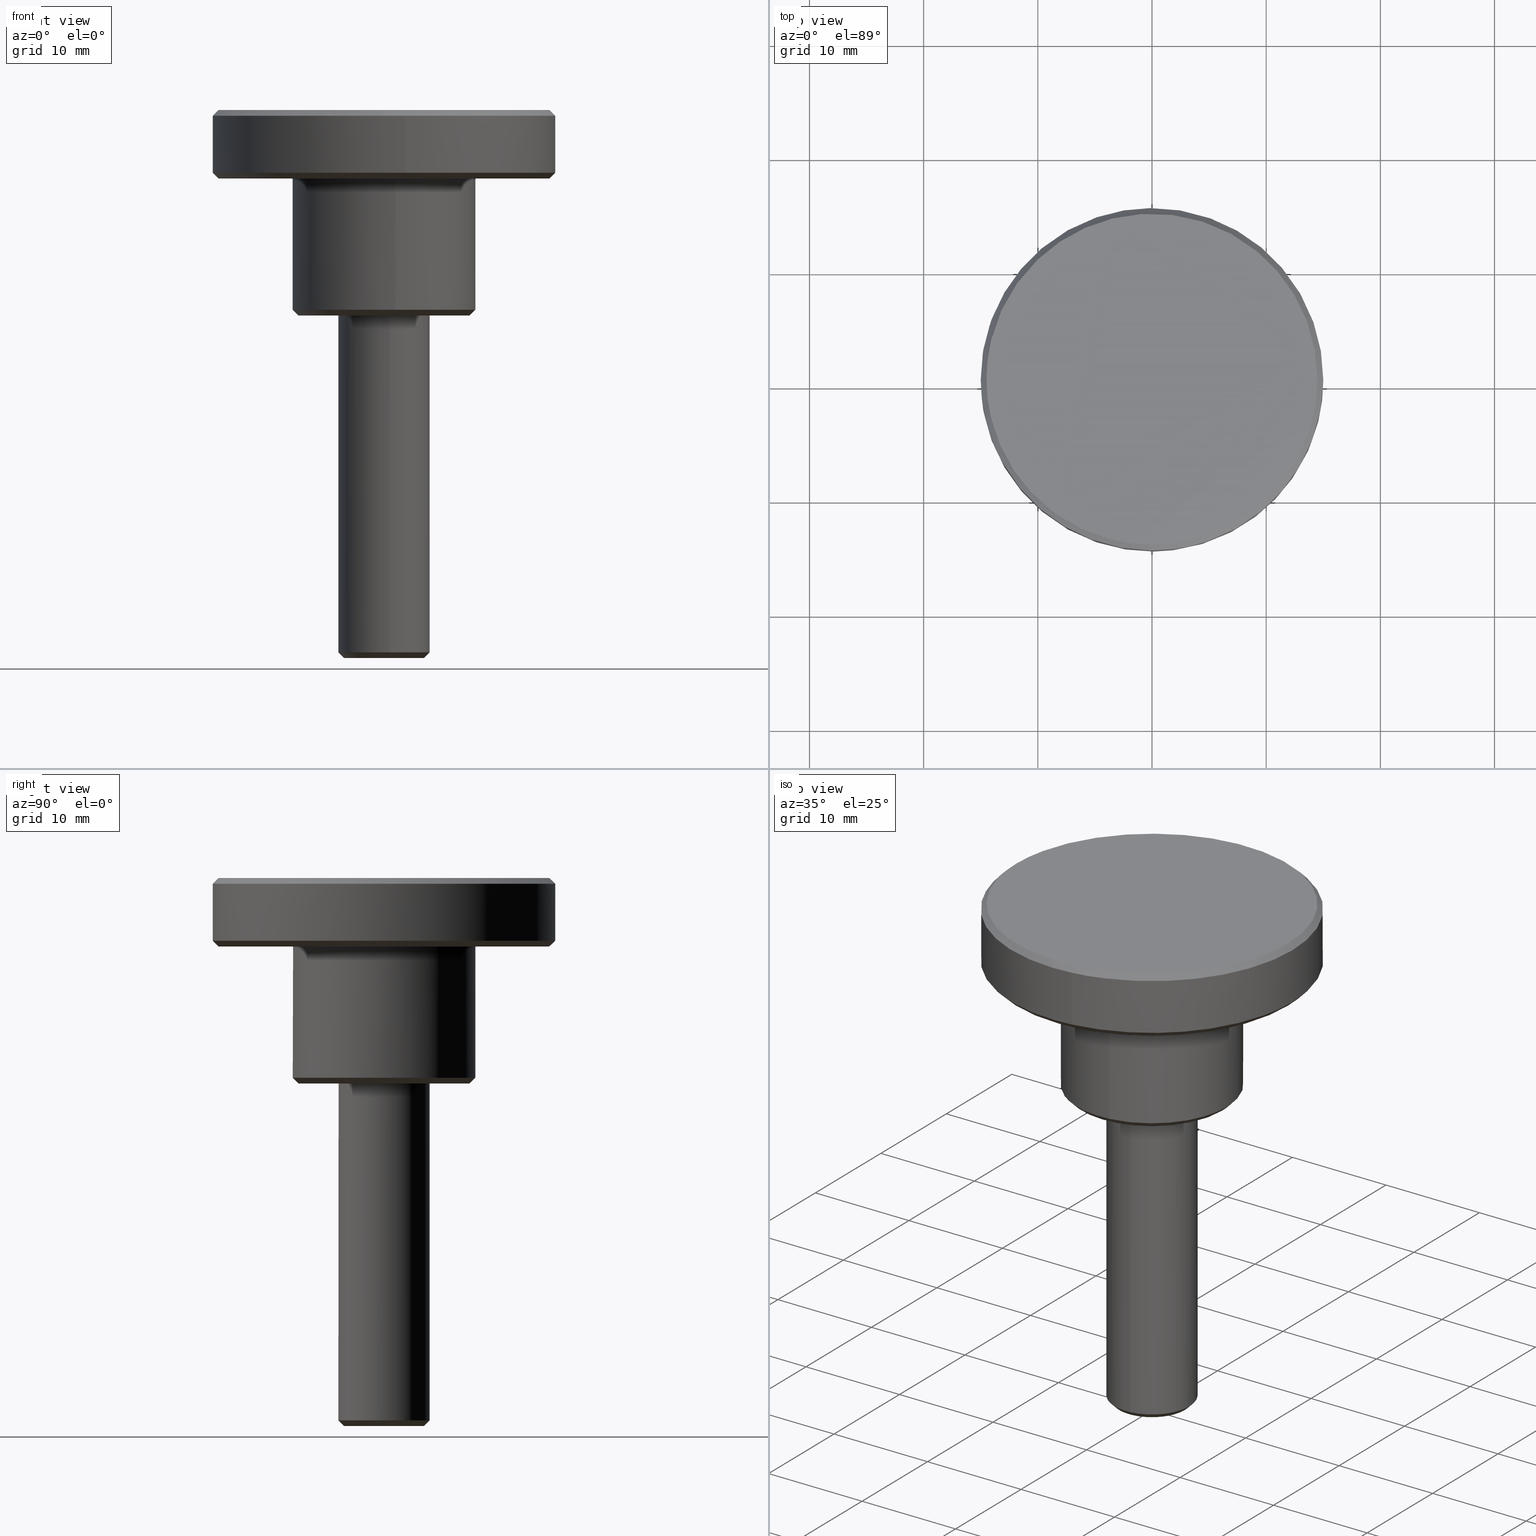
[diagram: canonical four-view strip — front | top / right | iso, engineering-drawing reading convention]
A machine part, canonical four-view strip (front | top / right | iso — engineering-drawing reading convention). The complete STEP part file that produces these views, byte-faithful:
ISO-10303-21;
HEADER;
/****************************************************************
 * Generated by software with PDE/Lib inside                    *
 * PDElib Version 4.4.1-0003, patched  Thursday August 19 11:58 *
 * International Technegroup Inc. (www.iti-oh.com)              *
 ****************************************************************/
FILE_DESCRIPTION((''),'2;1');
FILE_NAME('','2005-07-15T10:52:25',(''),(''),'','CADfix','');
FILE_SCHEMA(('AUTOMOTIVE_DESIGN'));
ENDSEC;
DATA;
#5=APPLICATION_CONTEXT('automotive design');
#6=APPLICATION_PROTOCOL_DEFINITION('Draft International Standard','automotive_design',1998,#5);
#7=PRODUCT_CONTEXT('None',#5,'mechanical');
#8=PRODUCT('knob','','None',(#7));
#9=PRODUCT_RELATED_PRODUCT_CATEGORY('part','description',(#8));
#10=PRODUCT_DEFINITION_FORMATION('None','None',#8);
#11=PRODUCT_DEFINITION_CONTEXT('part definition',#5,'design');
#12=PRODUCT_DEFINITION('None','None',#10,#11);
#18=(NAMED_UNIT(*)PLANE_ANGLE_UNIT()SI_UNIT($,.RADIAN.));
#19=DIMENSIONAL_EXPONENTS(0.0,0.0,0.0,0.0,0.0,0.0,0.0);
#20=PLANE_ANGLE_MEASURE_WITH_UNIT(PLANE_ANGLE_MEASURE(0.017453292500000),#18);
#24=(CONVERSION_BASED_UNIT('DEGREE',#20)NAMED_UNIT(#19)PLANE_ANGLE_UNIT());
#28=(NAMED_UNIT(*)SI_UNIT($,.STERADIAN.)SOLID_ANGLE_UNIT());
#32=(LENGTH_UNIT()NAMED_UNIT(*)SI_UNIT(.MILLI.,.METRE.));
#34=UNCERTAINTY_MEASURE_WITH_UNIT(LENGTH_MEASURE(0.001000000000000),#32,'DISTANCE_ACCURACY_VALUE','');
#36=(GEOMETRIC_REPRESENTATION_CONTEXT(3)GLOBAL_UNCERTAINTY_ASSIGNED_CONTEXT((#34))GLOBAL_UNIT_ASSIGNED_CONTEXT((#24,#28,#32))REPRESENTATION_CONTEXT('None','None'));
#37=AXIS2_PLACEMENT_3D('',#38,#39,#40);
#38=CARTESIAN_POINT('',(0.0,0.0,0.0));
#39=DIRECTION('',(0.0,0.0,1.0));
#40=DIRECTION('',(1.0,0.0,0.0));
#41=ADVANCED_BREP_SHAPE_REPRESENTATION('',(#37,#1267),#36);
#42=PRODUCT_DEFINITION_SHAPE('','',#12);
#43=SHAPE_DEFINITION_REPRESENTATION(#42,#41);
#44=CARTESIAN_POINT('',(-1.409701319057711,-3.189890035886337,-30.012500000000003));
#45=CARTESIAN_POINT('',(-0.721713350950105,-3.493931095366822,-30.012500000000014));
#46=CARTESIAN_POINT('',(0.030433792550579,-3.487367206686295,-30.012499999999999));
#47=CARTESIAN_POINT('',(3.517800999236875,-3.456933414135717,-30.012500000000003));
#48=CARTESIAN_POINT('',(3.487367206686295,0.030433792550579,-30.012499999999999));
#49=CARTESIAN_POINT('',(3.456933414135717,3.517800999236875,-30.012500000000003));
#50=CARTESIAN_POINT('',(-0.030433792550579,3.487367206686295,-30.012499999999999));
#51=CARTESIAN_POINT('',(-1.622040738173822,-3.670374368352686,-29.487187499999987));
#52=CARTESIAN_POINT('',(-0.830423041178332,-4.020212293512978,-29.487187499999994));
#53=CARTESIAN_POINT('',(0.035017950729568,-4.012659704395895,-29.487187499999990));
#54=CARTESIAN_POINT('',(4.047677655125463,-3.977641753666326,-29.487187500000001));
#55=CARTESIAN_POINT('',(4.012659704395895,0.035017950729568,-29.487187499999990));
#56=CARTESIAN_POINT('',(3.977641753666326,4.047677655125463,-29.487187500000001));
#57=CARTESIAN_POINT('',(-0.035017950729568,4.012659704395895,-29.487187499999990));
#65=(BOUNDED_SURFACE()B_SPLINE_SURFACE(2,1,((#44,#51),(#45,#52),(#46,#53),(#47,#54),(#48,#55),(#49,#56),(#50,#57)),.UNSPECIFIED.,.F.,.F.,.U.)B_SPLINE_SURFACE_WITH_KNOTS((3,2,2,3),(2,2),(0.0,1.861620724051498,8.510266167092558,15.158911610133620),(0.0,1.0),.UNSPECIFIED.)GEOMETRIC_REPRESENTATION_ITEM()RATIONAL_B_SPLINE_SURFACE(((0.881905454174416,0.881905454174416),(0.917989898732233,0.917989898732233),(1.0,1.0),(0.707106781186548,0.707106781186548),(1.0,1.0),(0.707106781186548,0.707106781186548),(1.0,1.0)))REPRESENTATION_ITEM('')SURFACE());
#66=CARTESIAN_POINT('',(-1.616861728026627,-3.658655238266630,-29.499999999993339));
#67=VERTEX_POINT('',#66);
#68=CARTESIAN_POINT('',(0.496505886777788,-3.969065621069642,-29.500000000000011));
#69=VERTEX_POINT('',#68);
#70=CARTESIAN_POINT('',(-1.616861728026627,-3.658655238266630,-29.499999999993335));
#71=CARTESIAN_POINT('',(-0.844462469090265,-4.000000000000001,-29.499999999999996));
#72=CARTESIAN_POINT('',(0.0,-4.0,-29.500000000000000));
#73=CARTESIAN_POINT('',(0.249216613533892,-4.0,-29.499999999999996));
#74=CARTESIAN_POINT('',(0.496505886777788,-3.969065621069642,-29.500000000000014));
#82=(BOUNDED_CURVE()B_SPLINE_CURVE(2,(#70,#71,#72,#73,#74),.UNSPECIFIED.,.F.,.U.)B_SPLINE_CURVE_WITH_KNOTS((3,2,3),(0.181361578453750,0.250000000000000,0.271473668865825),.UNSPECIFIED.)CURVE()GEOMETRIC_REPRESENTATION_ITEM()RATIONAL_B_SPLINE_CURVE((0.883326595745352,0.919585087116176,1.0,0.974842032024617,0.954005935038357))REPRESENTATION_ITEM(''));
#83=EDGE_CURVE('',#67,#69,#82,.T.);
#84=ORIENTED_EDGE('',*,*,#83,.F.);
#85=CARTESIAN_POINT('',(-1.414754012075400,-3.201323333465353,-29.999999999989551));
#86=VERTEX_POINT('',#85);
#87=CARTESIAN_POINT('',(-1.414754012075400,-3.201323333465353,-29.999999999989551));
#88=CARTESIAN_POINT('',(-1.616861728026627,-3.658655238266630,-29.499999999993339));
#89=QUASI_UNIFORM_CURVE('',1,(#87,#88),.UNSPECIFIED.,.F.,.U.);
#90=EDGE_CURVE('',#86,#67,#89,.T.);
#91=ORIENTED_EDGE('',*,*,#90,.F.);
#92=CARTESIAN_POINT('',(3.500000000000000,0.0,-30.0));
#93=VERTEX_POINT('',#92);
#94=CARTESIAN_POINT('',(3.500000000000000,0.0,-30.0));
#95=CARTESIAN_POINT('',(3.500000000000000,-3.500000000000000,-29.999999999999993));
#96=CARTESIAN_POINT('',(0.0,-3.500000000000000,-30.0));
#97=CARTESIAN_POINT('',(-0.738904660511333,-3.500000000000000,-30.0));
#98=CARTESIAN_POINT('',(-1.414754012075400,-3.201323333465353,-29.999999999989548));
#106=(BOUNDED_CURVE()B_SPLINE_CURVE(2,(#94,#95,#96,#97,#98),.UNSPECIFIED.,.F.,.U.)B_SPLINE_CURVE_WITH_KNOTS((3,2,3),(0.500000000000000,0.750000000000000,0.818638421551150),.UNSPECIFIED.)CURVE()GEOMETRIC_REPRESENTATION_ITEM()RATIONAL_B_SPLINE_CURVE((1.0,0.707106781186547,1.0,0.919585087110437,0.883326595740176))REPRESENTATION_ITEM(''));
#107=EDGE_CURVE('',#93,#86,#106,.T.);
#108=ORIENTED_EDGE('',*,*,#107,.F.);
#109=CARTESIAN_POINT('',(-0.030542874433317,3.499866730748723,-29.999999999974229));
#110=VERTEX_POINT('',#109);
#111=CARTESIAN_POINT('',(-0.030542874433317,3.499866730748723,-29.999999999974229));
#112=CARTESIAN_POINT('',(-0.015271728061250,3.500000000000000,-29.999999999999996));
#113=CARTESIAN_POINT('',(0.0,3.500000000000000,-30.0));
#114=CARTESIAN_POINT('',(3.500000000000000,3.500000000000000,-29.999999999999993));
#115=CARTESIAN_POINT('',(3.500000000000000,0.0,-30.0));
#123=(BOUNDED_CURVE()B_SPLINE_CURVE(2,(#111,#112,#113,#114,#115),.UNSPECIFIED.,.F.,.U.)B_SPLINE_CURVE_WITH_KNOTS((3,2,3),(0.248460105646011,0.250000000000000,0.500000000000000),.UNSPECIFIED.)CURVE()GEOMETRIC_REPRESENTATION_ITEM()RATIONAL_B_SPLINE_CURVE((0.996414028056429,0.998195901544109,1.0,0.707106781186547,1.0))REPRESENTATION_ITEM(''));
#124=EDGE_CURVE('',#110,#93,#123,.T.);
#125=ORIENTED_EDGE('',*,*,#124,.F.);
#126=CARTESIAN_POINT('',(-0.034906142018921,3.999847692256422,-29.500000000000011));
#127=VERTEX_POINT('',#126);
#128=CARTESIAN_POINT('',(-0.030542874433317,3.499866730748723,-29.999999999974229));
#129=CARTESIAN_POINT('',(-0.034906142018921,3.999847692256422,-29.500000000000011));
#130=QUASI_UNIFORM_CURVE('',1,(#128,#129),.UNSPECIFIED.,.F.,.U.);
#131=EDGE_CURVE('',#110,#127,#130,.T.);
#132=ORIENTED_EDGE('',*,*,#131,.T.);
#133=CARTESIAN_POINT('',(4.0,0.0,-29.500000000000000));
#134=VERTEX_POINT('',#133);
#135=CARTESIAN_POINT('',(4.0,0.0,-29.500000000000000));
#136=CARTESIAN_POINT('',(4.000000000000000,4.000000000000000,-29.499999999999996));
#137=CARTESIAN_POINT('',(0.0,4.0,-29.500000000000000));
#138=CARTESIAN_POINT('',(-0.017453403333655,4.000000000000000,-29.500000000000004));
#139=CARTESIAN_POINT('',(-0.034906142018921,3.999847692256422,-29.500000000000014));
#147=(BOUNDED_CURVE()B_SPLINE_CURVE(2,(#135,#136,#137,#138,#139),.UNSPECIFIED.,.F.,.U.)B_SPLINE_CURVE_WITH_KNOTS((3,2,3),(0.500000000000000,0.750000000000000,0.751539894339465),.UNSPECIFIED.)CURVE()GEOMETRIC_REPRESENTATION_ITEM()RATIONAL_B_SPLINE_CURVE((1.0,0.707106781186548,1.0,0.998195901561126,0.996414028090042))REPRESENTATION_ITEM(''));
#148=EDGE_CURVE('',#134,#127,#147,.T.);
#149=ORIENTED_EDGE('',*,*,#148,.F.);
#150=CARTESIAN_POINT('',(0.496505886777788,-3.969065621069642,-29.500000000000014));
#151=CARTESIAN_POINT('',(4.000000000000000,-3.530799888638054,-29.500000000000000));
#152=CARTESIAN_POINT('',(4.0,0.0,-29.500000000000000));
#160=(BOUNDED_CURVE()B_SPLINE_CURVE(2,(#150,#151,#152),.UNSPECIFIED.,.F.,.U.)B_SPLINE_CURVE_WITH_KNOTS((3,3),(0.271473668865825,0.500000000000000),.UNSPECIFIED.)CURVE()GEOMETRIC_REPRESENTATION_ITEM()RATIONAL_B_SPLINE_CURVE((0.954005935038357,0.732264749161931,1.0))REPRESENTATION_ITEM(''));
#161=EDGE_CURVE('',#69,#134,#160,.T.);
#162=ORIENTED_EDGE('',*,*,#161,.F.);
#163=EDGE_LOOP('',(#84,#91,#108,#125,#132,#149,#162));
#164=FACE_OUTER_BOUND('',#163,.T.);
#165=ADVANCED_FACE('',(#164),#65,.T.);
#166=CARTESIAN_POINT('',(-0.030433792550579,3.487367206686295,-30.012499999999999));
#167=CARTESIAN_POINT('',(-3.517800999236875,3.456933414135717,-30.012500000000003));
#168=CARTESIAN_POINT('',(-3.487367206686295,-0.030433792550579,-30.012499999999999));
#169=CARTESIAN_POINT('',(-3.467732146368713,-2.280388849549790,-30.012499999999999));
#170=CARTESIAN_POINT('',(-1.409701319057711,-3.189890035886337,-30.012500000000003));
#171=CARTESIAN_POINT('',(-0.035017950729568,4.012659704395895,-29.487187499999990));
#172=CARTESIAN_POINT('',(-4.047677655125463,3.977641753666326,-29.487187500000001));
#173=CARTESIAN_POINT('',(-4.012659704395895,-0.035017950729568,-29.487187499999990));
#174=CARTESIAN_POINT('',(-3.990067069132627,-2.623877528411156,-29.487187499999990));
#175=CARTESIAN_POINT('',(-1.622040738173822,-3.670374368352686,-29.487187499999987));
#183=(BOUNDED_SURFACE()B_SPLINE_SURFACE(2,1,((#166,#171),(#167,#172),(#168,#173),(#169,#174),(#170,#175)),.UNSPECIFIED.,.F.,.F.,.U.)B_SPLINE_SURFACE_WITH_KNOTS((3,2,3),(2,2),(0.0,6.648645443041060,11.435670162030620),(0.0,1.0),.UNSPECIFIED.)GEOMETRIC_REPRESENTATION_ITEM()RATIONAL_B_SPLINE_SURFACE(((1.0,1.0),(0.707106781186548,0.707106781186548),(1.0,1.0),(0.789116882454314,0.789116882454314),(0.881905454174416,0.881905454174416)))REPRESENTATION_ITEM('')SURFACE());
#184=CARTESIAN_POINT('',(-4.0,0.0,-29.500000000000000));
#185=VERTEX_POINT('',#184);
#186=CARTESIAN_POINT('',(-4.0,0.0,-29.500000000000000));
#187=CARTESIAN_POINT('',(-4.0,-2.605480010253697,-29.500000000000000));
#188=CARTESIAN_POINT('',(-1.616861728026627,-3.658655238266630,-29.499999999993335));
#196=(BOUNDED_CURVE()B_SPLINE_CURVE(2,(#186,#187,#188),.UNSPECIFIED.,.F.,.U.)B_SPLINE_CURVE_WITH_KNOTS((3,3),(0.0,0.181361578453750),.UNSPECIFIED.)CURVE()GEOMETRIC_REPRESENTATION_ITEM()RATIONAL_B_SPLINE_CURVE((1.0,0.787521694070371,0.883326595745352))REPRESENTATION_ITEM(''));
#197=EDGE_CURVE('',#185,#67,#196,.T.);
#198=ORIENTED_EDGE('',*,*,#197,.F.);
#199=CARTESIAN_POINT('',(-0.034906142018921,3.999847692256421,-29.500000000000014));
#200=CARTESIAN_POINT('',(-4.0,3.965244842279088,-29.499999999999989));
#201=CARTESIAN_POINT('',(-4.0,0.0,-29.500000000000000));
#209=(BOUNDED_CURVE()B_SPLINE_CURVE(2,(#199,#200,#201),.UNSPECIFIED.,.F.,.U.)B_SPLINE_CURVE_WITH_KNOTS((3,3),(0.751539894339466,1.0),.UNSPECIFIED.)CURVE()GEOMETRIC_REPRESENTATION_ITEM()RATIONAL_B_SPLINE_CURVE((0.996414028090041,0.708910879625423,1.0))REPRESENTATION_ITEM(''));
#210=EDGE_CURVE('',#127,#185,#209,.T.);
#211=ORIENTED_EDGE('',*,*,#210,.F.);
#212=ORIENTED_EDGE('',*,*,#131,.F.);
#213=CARTESIAN_POINT('',(-3.500000000000000,0.0,-30.0));
#214=VERTEX_POINT('',#213);
#215=CARTESIAN_POINT('',(-3.500000000000000,0.0,-30.0));
#216=CARTESIAN_POINT('',(-3.500000000000000,3.469589236708110,-30.000000000000004));
#217=CARTESIAN_POINT('',(-0.030542874433317,3.499866730748723,-29.999999999974225));
#225=(BOUNDED_CURVE()B_SPLINE_CURVE(2,(#215,#216,#217),.UNSPECIFIED.,.F.,.U.)B_SPLINE_CURVE_WITH_KNOTS((3,3),(0.0,0.248460105646011),.UNSPECIFIED.)CURVE()GEOMETRIC_REPRESENTATION_ITEM()RATIONAL_B_SPLINE_CURVE((1.0,0.708910879642438,0.996414028056429))REPRESENTATION_ITEM(''));
#226=EDGE_CURVE('',#214,#110,#225,.T.);
#227=ORIENTED_EDGE('',*,*,#226,.F.);
#228=CARTESIAN_POINT('',(-1.414754012075400,-3.201323333465353,-29.999999999989555));
#229=CARTESIAN_POINT('',(-3.500000000000000,-2.279795008893775,-30.0));
#230=CARTESIAN_POINT('',(-3.500000000000000,0.0,-30.0));
#238=(BOUNDED_CURVE()B_SPLINE_CURVE(2,(#228,#229,#230),.UNSPECIFIED.,.F.,.U.)B_SPLINE_CURVE_WITH_KNOTS((3,3),(0.818638421551150,1.0),.UNSPECIFIED.)CURVE()GEOMETRIC_REPRESENTATION_ITEM()RATIONAL_B_SPLINE_CURVE((0.883326595740175,0.787521694076111,1.0))REPRESENTATION_ITEM(''));
#239=EDGE_CURVE('',#86,#214,#238,.T.);
#240=ORIENTED_EDGE('',*,*,#239,.F.);
#241=ORIENTED_EDGE('',*,*,#90,.T.);
#242=EDGE_LOOP('',(#198,#211,#212,#227,#240,#241));
#243=FACE_OUTER_BOUND('',#242,.T.);
#244=ADVANCED_FACE('',(#243),#183,.T.);
#245=CARTESIAN_POINT('',(-14.113985494174887,-3.268496553497049,18.012499999999999));
#246=CARTESIAN_POINT('',(-14.501955050900259,-1.593170725190882,18.012499999999999));
#247=CARTESIAN_POINT('',(-14.486948360392230,0.126425683032692,18.012499999999999));
#248=CARTESIAN_POINT('',(-14.360522677359546,14.613374043424921,18.012500000000003));
#249=CARTESIAN_POINT('',(0.126425683032692,14.486948360392230,18.012499999999999));
#250=CARTESIAN_POINT('',(14.613374043424921,14.360522677359546,18.012500000000003));
#251=CARTESIAN_POINT('',(14.486948360392230,-0.126425683032692,18.012499999999999));
#252=CARTESIAN_POINT('',(14.360522677359546,-14.613374043424921,18.012500000000003));
#253=CARTESIAN_POINT('',(-0.126425683032692,-14.486948360392230,18.012499999999999));
#254=CARTESIAN_POINT('',(-14.625754467766466,-3.387011279692647,17.487187499999997));
#255=CARTESIAN_POINT('',(-15.027791686805363,-1.650938628319562,17.487187500000001));
#256=CARTESIAN_POINT('',(-15.012240858101830,0.131009841211681,17.487187500000001));
#257=CARTESIAN_POINT('',(-14.881231016890139,15.143250699313507,17.487187500000001));
#258=CARTESIAN_POINT('',(0.131009841211681,15.012240858101830,17.487187500000001));
#259=CARTESIAN_POINT('',(15.143250699313507,14.881231016890139,17.487187500000001));
#260=CARTESIAN_POINT('',(15.012240858101830,-0.131009841211681,17.487187500000001));
#261=CARTESIAN_POINT('',(14.881231016890139,-15.143250699313507,17.487187500000001));
#262=CARTESIAN_POINT('',(-0.131009841211681,-15.012240858101830,17.487187500000001));
#270=(BOUNDED_SURFACE()B_SPLINE_SURFACE(2,1,((#245,#254),(#246,#255),(#247,#256),(#248,#257),(#249,#258),(#250,#259),(#251,#260),(#252,#261),(#253,#262)),.UNSPECIFIED.,.F.,.F.,.U.)B_SPLINE_SURFACE_WITH_KNOTS((3,2,2,2,3),(2,2),(0.0,3.979846749993173,28.853888937450488,53.727931124907812,78.601973312365132),(0.0,1.0),.UNSPECIFIED.)GEOMETRIC_REPRESENTATION_ITEM()RATIONAL_B_SPLINE_SURFACE(((0.921270302782944,0.921270302782944),(0.953137084989848,0.953137084989848),(1.0,1.0),(0.707106781186548,0.707106781186548),(1.0,1.0),(0.707106781186548,0.707106781186548),(1.0,1.0),(0.707106781186548,0.707106781186548),(1.0,1.0)))REPRESENTATION_ITEM('')SURFACE());
#271=CARTESIAN_POINT('',(-14.613272297677160,-3.384120676629826,17.499999999998249));
#272=VERTEX_POINT('',#271);
#273=CARTESIAN_POINT('',(-15.0,0.0,17.500000000000000));
#274=VERTEX_POINT('',#273);
#275=CARTESIAN_POINT('',(-14.613272297677161,-3.384120676629826,17.499999999998252));
#276=CARTESIAN_POINT('',(-15.000000000000007,-1.714157410211393,17.500000000000004));
#277=CARTESIAN_POINT('',(-15.0,0.0,17.500000000000000));
#285=(BOUNDED_CURVE()B_SPLINE_CURVE(2,(#275,#276,#277),.UNSPECIFIED.,.F.,.U.)B_SPLINE_CURVE_WITH_KNOTS((3,3),(0.961422971784280,1.0),.UNSPECIFIED.)CURVE()GEOMETRIC_REPRESENTATION_ITEM()RATIONAL_B_SPLINE_CURVE((0.923556557442252,0.954804200134562,1.0))REPRESENTATION_ITEM(''));
#286=EDGE_CURVE('',#272,#274,#285,.T.);
#287=ORIENTED_EDGE('',*,*,#286,.F.);
#288=CARTESIAN_POINT('',(-14.126163221084020,-3.271316654109802,17.999999999994401));
#289=VERTEX_POINT('',#288);
#290=CARTESIAN_POINT('',(-14.126163221084020,-3.271316654109802,17.999999999994401));
#291=CARTESIAN_POINT('',(-14.613272297677160,-3.384120676629826,17.499999999998249));
#292=QUASI_UNIFORM_CURVE('',1,(#290,#291),.UNSPECIFIED.,.F.,.U.);
#293=EDGE_CURVE('',#289,#272,#292,.T.);
#294=ORIENTED_EDGE('',*,*,#293,.F.);
#295=CARTESIAN_POINT('',(-14.500000000000000,0.0,18.0));
#296=VERTEX_POINT('',#295);
#297=CARTESIAN_POINT('',(-14.500000000000000,0.0,18.0));
#298=CARTESIAN_POINT('',(-14.500000000000004,-1.657018829905802,17.999999999999996));
#299=CARTESIAN_POINT('',(-14.126163221084020,-3.271316654109802,17.999999999994404));
#307=(BOUNDED_CURVE()B_SPLINE_CURVE(2,(#297,#298,#299),.UNSPECIFIED.,.F.,.U.)B_SPLINE_CURVE_WITH_KNOTS((3,3),(0.500000000000000,0.538577028216493),.UNSPECIFIED.)CURVE()GEOMETRIC_REPRESENTATION_ITEM()RATIONAL_B_SPLINE_CURVE((1.0,0.954804200133656,0.923556557440999))REPRESENTATION_ITEM(''));
#308=EDGE_CURVE('',#296,#289,#307,.T.);
#309=ORIENTED_EDGE('',*,*,#308,.F.);
#310=CARTESIAN_POINT('',(14.500000000000000,0.0,18.0));
#311=VERTEX_POINT('',#310);
#312=CARTESIAN_POINT('',(14.500000000000000,0.0,18.0));
#313=CARTESIAN_POINT('',(14.500000000000000,14.500000000000000,18.000000000000007));
#314=CARTESIAN_POINT('',(0.0,14.500000000000000,18.0));
#315=CARTESIAN_POINT('',(-14.500000000000000,14.500000000000000,18.000000000000007));
#316=CARTESIAN_POINT('',(-14.500000000000000,0.0,18.0));
#324=(BOUNDED_CURVE()B_SPLINE_CURVE(2,(#312,#313,#314,#315,#316),.UNSPECIFIED.,.F.,.U.)B_SPLINE_CURVE_WITH_KNOTS((3,2,3),(0.0,0.250000000000000,0.500000000000000),.UNSPECIFIED.)CURVE()GEOMETRIC_REPRESENTATION_ITEM()RATIONAL_B_SPLINE_CURVE((1.0,0.707106781186548,1.0,0.707106781186548,1.0))REPRESENTATION_ITEM(''));
#325=EDGE_CURVE('',#311,#296,#324,.T.);
#326=ORIENTED_EDGE('',*,*,#325,.F.);
#327=CARTESIAN_POINT('',(-0.126534764776505,-14.499447884436870,17.999999999993211));
#328=VERTEX_POINT('',#327);
#329=CARTESIAN_POINT('',(-0.126534764776505,-14.499447884436865,17.999999999993211));
#330=CARTESIAN_POINT('',(-0.063268586950198,-14.500000000000000,18.000000000000004));
#331=CARTESIAN_POINT('',(0.0,-14.500000000000000,18.0));
#332=CARTESIAN_POINT('',(14.500000000000000,-14.500000000000000,18.000000000000007));
#333=CARTESIAN_POINT('',(14.500000000000000,0.0,18.0));
#341=(BOUNDED_CURVE()B_SPLINE_CURVE(2,(#329,#330,#331,#332,#333),.UNSPECIFIED.,.F.,.U.)B_SPLINE_CURVE_WITH_KNOTS((3,2,3),(0.748460105663798,0.750000000000000,1.0),.UNSPECIFIED.)CURVE()GEOMETRIC_REPRESENTATION_ITEM()RATIONAL_B_SPLINE_CURVE((0.996414028097593,0.998195901564948,1.0,0.707106781186548,1.0))REPRESENTATION_ITEM(''));
#342=EDGE_CURVE('',#328,#311,#341,.T.);
#343=ORIENTED_EDGE('',*,*,#342,.F.);
#344=CARTESIAN_POINT('',(-0.130898032521303,-14.999428845968369,17.499999999993801));
#345=VERTEX_POINT('',#344);
#346=CARTESIAN_POINT('',(-0.126534764776505,-14.499447884436870,17.999999999993211));
#347=CARTESIAN_POINT('',(-0.130898032521303,-14.999428845968369,17.499999999993801));
#348=QUASI_UNIFORM_CURVE('',1,(#346,#347),.UNSPECIFIED.,.F.,.U.);
#349=EDGE_CURVE('',#328,#345,#348,.T.);
#350=ORIENTED_EDGE('',*,*,#349,.T.);
#351=CARTESIAN_POINT('',(1.861907448640334,-14.883994781393090,17.499999999999989));
#352=VERTEX_POINT('',#351);
#353=CARTESIAN_POINT('',(1.861907448640334,-14.883994781393088,17.499999999999993));
#354=CARTESIAN_POINT('',(0.934567548077588,-15.0,17.499999999999996));
#355=CARTESIAN_POINT('',(0.0,-15.0,17.500000000000000));
#356=CARTESIAN_POINT('',(-0.065450262356129,-15.0,17.499999999999996));
#357=CARTESIAN_POINT('',(-0.130898032521303,-14.999428845968374,17.499999999993793));
#365=(BOUNDED_CURVE()B_SPLINE_CURVE(2,(#353,#354,#355,#356,#357),.UNSPECIFIED.,.F.,.U.)B_SPLINE_CURVE_WITH_KNOTS((3,2,3),(0.728526213598370,0.750000000000000,0.751539894336058),.UNSPECIFIED.)CURVE()GEOMETRIC_REPRESENTATION_ITEM()RATIONAL_B_SPLINE_CURVE((0.954005706946358,0.974841894322857,1.0,0.998195901565117,0.996414028097927))REPRESENTATION_ITEM(''));
#366=EDGE_CURVE('',#352,#345,#365,.T.);
#367=ORIENTED_EDGE('',*,*,#366,.F.);
#368=CARTESIAN_POINT('',(15.0,0.0,17.500000000000000));
#369=VERTEX_POINT('',#368);
#370=CARTESIAN_POINT('',(15.0,0.0,17.500000000000000));
#371=CARTESIAN_POINT('',(14.999999999999998,-13.240490282667874,17.500000000000004));
#372=CARTESIAN_POINT('',(1.861907448640334,-14.883994781393088,17.499999999999993));
#380=(BOUNDED_CURVE()B_SPLINE_CURVE(2,(#370,#371,#372),.UNSPECIFIED.,.F.,.U.)B_SPLINE_CURVE_WITH_KNOTS((3,3),(0.500000000000000,0.728526213598370),.UNSPECIFIED.)CURVE()GEOMETRIC_REPRESENTATION_ITEM()RATIONAL_B_SPLINE_CURVE((1.0,0.732264886863691,0.954005706946358))REPRESENTATION_ITEM(''));
#381=EDGE_CURVE('',#369,#352,#380,.T.);
#382=ORIENTED_EDGE('',*,*,#381,.F.);
#383=CARTESIAN_POINT('',(-0.130883395555954,14.999428973682750,17.499999999999929));
#384=VERTEX_POINT('',#383);
#385=CARTESIAN_POINT('',(-0.130883395555954,14.999428973682749,17.499999999999932));
#386=CARTESIAN_POINT('',(-0.065442943432759,15.000000000000004,17.500000000000004));
#387=CARTESIAN_POINT('',(0.0,15.0,17.500000000000000));
#388=CARTESIAN_POINT('',(14.999999999999996,14.999999999999996,17.500000000000000));
#389=CARTESIAN_POINT('',(15.0,0.0,17.500000000000000));
#397=(BOUNDED_CURVE()B_SPLINE_CURVE(2,(#385,#386,#387,#388,#389),.UNSPECIFIED.,.F.,.U.)B_SPLINE_CURVE_WITH_KNOTS((3,2,3),(0.248460277550771,0.250000000000000,0.500000000000000),.UNSPECIFIED.)CURVE()GEOMETRIC_REPRESENTATION_ITEM()RATIONAL_B_SPLINE_CURVE((0.996414425892485,0.998196102943064,1.0,0.707106781186547,1.0))REPRESENTATION_ITEM(''));
#398=EDGE_CURVE('',#384,#369,#397,.T.);
#399=ORIENTED_EDGE('',*,*,#398,.F.);
#400=CARTESIAN_POINT('',(-15.0,0.0,17.500000000000000));
#401=CARTESIAN_POINT('',(-14.999999999999995,14.869682669779149,17.499999999999996));
#402=CARTESIAN_POINT('',(-0.130883395555954,14.999428973682749,17.499999999999932));
#410=(BOUNDED_CURVE()B_SPLINE_CURVE(2,(#400,#401,#402),.UNSPECIFIED.,.F.,.U.)B_SPLINE_CURVE_WITH_KNOTS((3,3),(0.0,0.248460277550771),.UNSPECIFIED.)CURVE()GEOMETRIC_REPRESENTATION_ITEM()RATIONAL_B_SPLINE_CURVE((1.0,0.708910678243484,0.996414425892485))REPRESENTATION_ITEM(''));
#411=EDGE_CURVE('',#274,#384,#410,.T.);
#412=ORIENTED_EDGE('',*,*,#411,.F.);
#413=EDGE_LOOP('',(#287,#294,#309,#326,#343,#350,#367,#382,#399,#412));
#414=FACE_OUTER_BOUND('',#413,.T.);
#415=ADVANCED_FACE('',(#414),#270,.T.);
#416=CARTESIAN_POINT('',(-0.126425683032692,-14.486948360392230,18.012499999999999));
#417=CARTESIAN_POINT('',(-11.539096987788398,-14.387351486776240,18.012500000000003));
#418=CARTESIAN_POINT('',(-14.113985494174887,-3.268496553497049,18.012499999999999));
#419=CARTESIAN_POINT('',(-0.131009841211681,-15.012240858101830,17.487187500000001));
#420=CARTESIAN_POINT('',(-11.957501259498279,-14.909032631065896,17.487187500000001));
#421=CARTESIAN_POINT('',(-14.625754467766466,-3.387011279692647,17.487187499999997));
#429=(BOUNDED_SURFACE()B_SPLINE_SURFACE(2,1,((#416,#419),(#417,#420),(#418,#421)),.UNSPECIFIED.,.F.,.F.,.U.)B_SPLINE_SURFACE_WITH_KNOTS((3,3),(2,2),(0.0,20.802823909488470),(0.0,1.0),.UNSPECIFIED.)GEOMETRIC_REPRESENTATION_ITEM()RATIONAL_B_SPLINE_SURFACE(((1.0,1.0),(0.753969696196700,0.753969696196700),(0.921270302782944,0.921270302782944)))REPRESENTATION_ITEM('')SURFACE());
#430=CARTESIAN_POINT('',(-0.130898032521303,-14.999428845968374,17.499999999993801));
#431=CARTESIAN_POINT('',(-11.947296277253635,-14.896308700645521,17.500000000000000));
#432=CARTESIAN_POINT('',(-14.613272297677165,-3.384120676629826,17.499999999998259));
#440=(BOUNDED_CURVE()B_SPLINE_CURVE(2,(#430,#431,#432),.UNSPECIFIED.,.F.,.U.)B_SPLINE_CURVE_WITH_KNOTS((3,3),(0.751539894336059,0.961422971784280),.UNSPECIFIED.)CURVE()GEOMETRIC_REPRESENTATION_ITEM()RATIONAL_B_SPLINE_CURVE((0.996414028097925,0.753549905437058,0.923556557442251))REPRESENTATION_ITEM(''));
#441=EDGE_CURVE('',#345,#272,#440,.T.);
#442=ORIENTED_EDGE('',*,*,#441,.F.);
#443=ORIENTED_EDGE('',*,*,#349,.F.);
#444=CARTESIAN_POINT('',(-14.126163221084019,-3.271316654109802,17.999999999994404));
#445=CARTESIAN_POINT('',(-11.549053067958425,-14.399765077281884,17.999999999999996));
#446=CARTESIAN_POINT('',(-0.126534764776505,-14.499447884436869,17.999999999993207));
#454=(BOUNDED_CURVE()B_SPLINE_CURVE(2,(#444,#445,#446),.UNSPECIFIED.,.F.,.U.)B_SPLINE_CURVE_WITH_KNOTS((3,3),(0.538577028216492,0.748460105663798),.UNSPECIFIED.)CURVE()GEOMETRIC_REPRESENTATION_ITEM()RATIONAL_B_SPLINE_CURVE((0.923556557441000,0.753549905438067,0.996414028097595))REPRESENTATION_ITEM(''));
#455=EDGE_CURVE('',#289,#328,#454,.T.);
#456=ORIENTED_EDGE('',*,*,#455,.F.);
#457=ORIENTED_EDGE('',*,*,#293,.T.);
#458=EDGE_LOOP('',(#442,#443,#456,#457));
#459=FACE_OUTER_BOUND('',#458,.T.);
#460=ADVANCED_FACE('',(#459),#429,.T.);
#461=CARTESIAN_POINT('',(11.863322807898196,-8.315601493915052,11.987500000000006));
#462=CARTESIAN_POINT('',(14.527452271915889,-4.514862863426098,11.987500000000006));
#463=CARTESIAN_POINT('',(14.486948360392180,0.126425683032692,11.987500000000001));
#464=CARTESIAN_POINT('',(14.360522677359487,14.613374043424866,11.987500000000001));
#465=CARTESIAN_POINT('',(-0.126425683032692,14.486948360392180,11.987500000000001));
#466=CARTESIAN_POINT('',(-14.613374043424866,14.360522677359487,11.987500000000001));
#467=CARTESIAN_POINT('',(-14.486948360392180,-0.126425683032692,11.987500000000001));
#468=CARTESIAN_POINT('',(-14.360522677359487,-14.613374043424866,11.987500000000001));
#469=CARTESIAN_POINT('',(0.126425683032692,-14.486948360392180,11.987500000000001));
#470=CARTESIAN_POINT('',(12.293483412731655,-8.617122764650015,12.512812500000011));
#471=CARTESIAN_POINT('',(15.054213429575364,-4.678570466390292,12.512812500000003));
#472=CARTESIAN_POINT('',(15.012240858101890,0.131009841211682,12.512812500000001));
#473=CARTESIAN_POINT('',(14.881231016890208,15.143250699313565,12.512812500000003));
#474=CARTESIAN_POINT('',(-0.131009841211682,15.012240858101890,12.512812500000001));
#475=CARTESIAN_POINT('',(-15.143250699313565,14.881231016890208,12.512812500000003));
#476=CARTESIAN_POINT('',(-15.012240858101890,-0.131009841211682,12.512812500000001));
#477=CARTESIAN_POINT('',(-14.881231016890208,-15.143250699313565,12.512812500000003));
#478=CARTESIAN_POINT('',(0.131009841211682,-15.012240858101890,12.512812500000001));
#486=(BOUNDED_SURFACE()B_SPLINE_SURFACE(2,1,((#461,#470),(#462,#471),(#463,#472),(#464,#473),(#465,#474),(#466,#475),(#467,#476),(#468,#477),(#469,#478)),.UNSPECIFIED.,.F.,.F.,.U.)B_SPLINE_SURFACE_WITH_KNOTS((3,2,2,2,3),(2,2),(0.0,9.949616874982967,34.823659062440392,59.697701249897797,84.571743437355209),(0.0,1.0),.UNSPECIFIED.)GEOMETRIC_REPRESENTATION_ITEM()RATIONAL_B_SPLINE_SURFACE(((0.859411254969543,0.859411254969543),(0.882842712474619,0.882842712474619),(1.0,1.0),(0.707106781186548,0.707106781186548),(1.0,1.0),(0.707106781186548,0.707106781186548),(1.0,1.0),(0.707106781186548,0.707106781186548),(1.0,1.0)))REPRESENTATION_ITEM('')SURFACE());
#487=CARTESIAN_POINT('',(14.500000000000000,0.0,12.0));
#488=VERTEX_POINT('',#487);
#489=CARTESIAN_POINT('',(11.873558634303150,-8.322776301077301,12.000000000000311));
#490=VERTEX_POINT('',#489);
#491=CARTESIAN_POINT('',(14.500000000000000,0.0,12.0));
#492=CARTESIAN_POINT('',(14.499999999999998,-4.575804806589912,12.000000000000007));
#493=CARTESIAN_POINT('',(11.873558634303153,-8.322776301077301,12.000000000000307));
#501=(BOUNDED_CURVE()B_SPLINE_CURVE(2,(#491,#492,#493),.UNSPECIFIED.,.F.,.U.)B_SPLINE_CURVE_WITH_KNOTS((3,3),(0.0,0.098673726203025),.UNSPECIFIED.)CURVE()GEOMETRIC_REPRESENTATION_ITEM()RATIONAL_B_SPLINE_CURVE((1.0,0.884396538880315,0.860049271925796))REPRESENTATION_ITEM(''));
#502=EDGE_CURVE('',#488,#490,#501,.T.);
#503=ORIENTED_EDGE('',*,*,#502,.F.);
#504=CARTESIAN_POINT('',(-14.500000000000000,0.0,12.0));
#505=VERTEX_POINT('',#504);
#506=CARTESIAN_POINT('',(-14.500000000000000,0.0,12.0));
#507=CARTESIAN_POINT('',(-14.500000000000000,14.500000000000000,12.0));
#508=CARTESIAN_POINT('',(0.0,14.500000000000000,12.0));
#509=CARTESIAN_POINT('',(14.500000000000000,14.500000000000000,12.0));
#510=CARTESIAN_POINT('',(14.500000000000000,0.0,12.0));
#518=(BOUNDED_CURVE()B_SPLINE_CURVE(2,(#506,#507,#508,#509,#510),.UNSPECIFIED.,.F.,.U.)B_SPLINE_CURVE_WITH_KNOTS((3,2,3),(0.500000000000000,0.750000000000000,1.0),.UNSPECIFIED.)CURVE()GEOMETRIC_REPRESENTATION_ITEM()RATIONAL_B_SPLINE_CURVE((1.0,0.707106781186548,1.0,0.707106781186548,1.0))REPRESENTATION_ITEM(''));
#519=EDGE_CURVE('',#505,#488,#518,.T.);
#520=ORIENTED_EDGE('',*,*,#519,.F.);
#521=CARTESIAN_POINT('',(0.126534764776504,-14.499447884436851,12.000000000006811));
#522=VERTEX_POINT('',#521);
#523=CARTESIAN_POINT('',(0.126534764776504,-14.499447884436854,12.000000000006807));
#524=CARTESIAN_POINT('',(0.063268586950198,-14.500000000000000,12.000000000000002));
#525=CARTESIAN_POINT('',(0.0,-14.500000000000000,12.0));
#526=CARTESIAN_POINT('',(-14.500000000000000,-14.500000000000000,12.0));
#527=CARTESIAN_POINT('',(-14.500000000000000,0.0,12.0));
#535=(BOUNDED_CURVE()B_SPLINE_CURVE(2,(#523,#524,#525,#526,#527),.UNSPECIFIED.,.F.,.U.)B_SPLINE_CURVE_WITH_KNOTS((3,2,3),(0.248460105663798,0.250000000000000,0.500000000000000),.UNSPECIFIED.)CURVE()GEOMETRIC_REPRESENTATION_ITEM()RATIONAL_B_SPLINE_CURVE((0.996414028097593,0.998195901564948,1.0,0.707106781186548,1.0))REPRESENTATION_ITEM(''));
#536=EDGE_CURVE('',#522,#505,#535,.T.);
#537=ORIENTED_EDGE('',*,*,#536,.F.);
#538=CARTESIAN_POINT('',(0.130898032475798,-14.999428845962610,12.500000000000011));
#539=VERTEX_POINT('',#538);
#540=CARTESIAN_POINT('',(0.126534764776504,-14.499447884436851,12.000000000006811));
#541=CARTESIAN_POINT('',(0.130898032475798,-14.999428845962610,12.500000000000011));
#542=QUASI_UNIFORM_CURVE('',1,(#540,#541),.UNSPECIFIED.,.F.,.U.);
#543=EDGE_CURVE('',#522,#539,#542,.T.);
#544=ORIENTED_EDGE('',*,*,#543,.T.);
#545=CARTESIAN_POINT('',(-15.0,0.0,12.500000000000000));
#546=VERTEX_POINT('',#545);
#547=CARTESIAN_POINT('',(-15.0,0.0,12.500000000000000));
#548=CARTESIAN_POINT('',(-14.999999999999996,-14.999999999999996,12.499999999999998));
#549=CARTESIAN_POINT('',(0.0,-15.0,12.500000000000000));
#550=CARTESIAN_POINT('',(0.065450262310713,-14.999999999999998,12.500000000000005));
#551=CARTESIAN_POINT('',(0.130898032475798,-14.999428845962608,12.500000000000016));
#559=(BOUNDED_CURVE()B_SPLINE_CURVE(2,(#547,#548,#549,#550,#551),.UNSPECIFIED.,.F.,.U.)B_SPLINE_CURVE_WITH_KNOTS((3,2,3),(0.0,0.250000000000000,0.251539894334992),.UNSPECIFIED.)CURVE()GEOMETRIC_REPRESENTATION_ITEM()RATIONAL_B_SPLINE_CURVE((1.0,0.707106781186547,1.0,0.998195901566367,0.996414028100395))REPRESENTATION_ITEM(''));
#560=EDGE_CURVE('',#546,#539,#559,.T.);
#561=ORIENTED_EDGE('',*,*,#560,.F.);
#562=CARTESIAN_POINT('',(-0.130883431942157,14.999428973365280,12.500000000000000));
#563=VERTEX_POINT('',#562);
#564=CARTESIAN_POINT('',(-0.130883431942157,14.999428973365275,12.499999999999996));
#565=CARTESIAN_POINT('',(-15.0,14.869682633706313,12.499999999999998));
#566=CARTESIAN_POINT('',(-15.0,0.0,12.500000000000000));
#574=(BOUNDED_CURVE()B_SPLINE_CURVE(2,(#564,#565,#566),.UNSPECIFIED.,.F.,.U.)B_SPLINE_CURVE_WITH_KNOTS((3,3),(0.751539722876523,1.0),.UNSPECIFIED.)CURVE()GEOMETRIC_REPRESENTATION_ITEM()RATIONAL_B_SPLINE_CURVE((0.996414424903605,0.708910678744090,1.0))REPRESENTATION_ITEM(''));
#575=EDGE_CURVE('',#563,#546,#574,.T.);
#576=ORIENTED_EDGE('',*,*,#575,.F.);
#577=CARTESIAN_POINT('',(15.0,0.0,12.500000000000000));
#578=VERTEX_POINT('',#577);
#579=CARTESIAN_POINT('',(15.0,0.0,12.500000000000000));
#580=CARTESIAN_POINT('',(14.999999999999996,14.999999999999996,12.499999999999998));
#581=CARTESIAN_POINT('',(0.0,15.0,12.500000000000000));
#582=CARTESIAN_POINT('',(-0.065442961626901,14.999999999999998,12.500000000000002));
#583=CARTESIAN_POINT('',(-0.130883431942157,14.999428973365275,12.499999999999996));
#591=(BOUNDED_CURVE()B_SPLINE_CURVE(2,(#579,#580,#581,#582,#583),.UNSPECIFIED.,.F.,.U.)B_SPLINE_CURVE_WITH_KNOTS((3,2,3),(0.500000000000000,0.750000000000000,0.751539722876523),.UNSPECIFIED.)CURVE()GEOMETRIC_REPRESENTATION_ITEM()RATIONAL_B_SPLINE_CURVE((1.0,0.707106781186547,1.0,0.998196102442457,0.996414424903605))REPRESENTATION_ITEM(''));
#592=EDGE_CURVE('',#578,#563,#591,.T.);
#593=ORIENTED_EDGE('',*,*,#592,.F.);
#594=CARTESIAN_POINT('',(12.282991690657370,-8.609768587323028,12.500000000000391));
#595=VERTEX_POINT('',#594);
#596=CARTESIAN_POINT('',(12.282991690657379,-8.609768587323028,12.500000000000391));
#597=CARTESIAN_POINT('',(15.0,-4.733591179233125,12.499999999999998));
#598=CARTESIAN_POINT('',(15.0,0.0,12.500000000000000));
#606=(BOUNDED_CURVE()B_SPLINE_CURVE(2,(#596,#597,#598),.UNSPECIFIED.,.F.,.U.)B_SPLINE_CURVE_WITH_KNOTS((3,3),(0.401326273796934,0.500000000000000),.UNSPECIFIED.)CURVE()GEOMETRIC_REPRESENTATION_ITEM()RATIONAL_B_SPLINE_CURVE((0.860049271925776,0.884396538880267,1.0))REPRESENTATION_ITEM(''));
#607=EDGE_CURVE('',#595,#578,#606,.T.);
#608=ORIENTED_EDGE('',*,*,#607,.F.);
#609=CARTESIAN_POINT('',(11.873558634303150,-8.322776301077301,12.000000000000311));
#610=CARTESIAN_POINT('',(12.282991690657370,-8.609768587323028,12.500000000000391));
#611=QUASI_UNIFORM_CURVE('',1,(#609,#610),.UNSPECIFIED.,.F.,.U.);
#612=EDGE_CURVE('',#490,#595,#611,.T.);
#613=ORIENTED_EDGE('',*,*,#612,.F.);
#614=EDGE_LOOP('',(#503,#520,#537,#544,#561,#576,#593,#608,#613));
#615=FACE_OUTER_BOUND('',#614,.T.);
#616=ADVANCED_FACE('',(#615),#486,.T.);
#617=CARTESIAN_POINT('',(0.126425683032692,-14.486948360392180,11.987500000000001));
#618=CARTESIAN_POINT('',(7.583127834570551,-14.421874706560637,11.987500000000001));
#619=CARTESIAN_POINT('',(11.863322807898196,-8.315601493915052,11.987500000000006));
#620=CARTESIAN_POINT('',(0.131009841211682,-15.012240858101890,12.512812500000001));
#621=CARTESIAN_POINT('',(7.858089825293472,-14.944807652672184,12.512812500000003));
#622=CARTESIAN_POINT('',(12.293483412731655,-8.617122764650015,12.512812500000011));
#630=(BOUNDED_SURFACE()B_SPLINE_SURFACE(2,1,((#617,#620),(#618,#621),(#619,#622)),.UNSPECIFIED.,.F.,.F.,.U.)B_SPLINE_SURFACE_WITH_KNOTS((3,3),(2,2),(0.0,14.822698393180930),(0.0,1.0),.UNSPECIFIED.)GEOMETRIC_REPRESENTATION_ITEM()RATIONAL_B_SPLINE_SURFACE(((1.0,1.0),(0.824264068711928,0.824264068711928),(0.859411254969543,0.859411254969543)))REPRESENTATION_ITEM('')SURFACE());
#631=CARTESIAN_POINT('',(11.873558634303153,-8.322776301077301,12.000000000000307));
#632=CARTESIAN_POINT('',(7.589670654127041,-14.434318084167721,12.0));
#633=CARTESIAN_POINT('',(0.126534764776504,-14.499447884436851,12.000000000006805));
#641=(BOUNDED_CURVE()B_SPLINE_CURVE(2,(#631,#632,#633),.UNSPECIFIED.,.F.,.U.)B_SPLINE_CURVE_WITH_KNOTS((3,3),(0.098673726203025,0.248460105663798),.UNSPECIFIED.)CURVE()GEOMETRIC_REPRESENTATION_ITEM()RATIONAL_B_SPLINE_CURVE((0.860049271925796,0.823090203821096,0.996414028097593))REPRESENTATION_ITEM(''));
#642=EDGE_CURVE('',#490,#522,#641,.T.);
#643=ORIENTED_EDGE('',*,*,#642,.F.);
#644=ORIENTED_EDGE('',*,*,#612,.T.);
#645=CARTESIAN_POINT('',(1.861919068826037,-14.883993327771311,12.500000000000000));
#646=VERTEX_POINT('',#645);
#647=CARTESIAN_POINT('',(1.861919068826037,-14.883993327771318,12.500000000000002));
#648=CARTESIAN_POINT('',(8.463976589709361,-14.058106748285704,12.500000000000000));
#649=CARTESIAN_POINT('',(12.282991690657379,-8.609768587323028,12.500000000000391));
#657=(BOUNDED_CURVE()B_SPLINE_CURVE(2,(#647,#648,#649),.UNSPECIFIED.,.F.,.U.)B_SPLINE_CURVE_WITH_KNOTS((3,3),(0.271473907162035,0.401326273796934),.UNSPECIFIED.)CURVE()GEOMETRIC_REPRESENTATION_ITEM()RATIONAL_B_SPLINE_CURVE((0.954005472596913,0.828008825529478,0.860049271925776))REPRESENTATION_ITEM(''));
#658=EDGE_CURVE('',#646,#595,#657,.T.);
#659=ORIENTED_EDGE('',*,*,#658,.F.);
#660=CARTESIAN_POINT('',(0.130898032475798,-14.999428845962608,12.500000000000016));
#661=CARTESIAN_POINT('',(0.999751411283342,-14.991846477396138,12.500000000000002));
#662=CARTESIAN_POINT('',(1.861919068826038,-14.883993327771316,12.500000000000004));
#670=(BOUNDED_CURVE()B_SPLINE_CURVE(2,(#660,#661,#662),.UNSPECIFIED.,.F.,.U.)B_SPLINE_CURVE_WITH_KNOTS((3,3),(0.251539894334992,0.271473907162035),.UNSPECIFIED.)CURVE()GEOMETRIC_REPRESENTATION_ITEM()RATIONAL_B_SPLINE_CURVE((0.996414028100395,0.973347582747809,0.954005472596913))REPRESENTATION_ITEM(''));
#671=EDGE_CURVE('',#539,#646,#670,.T.);
#672=ORIENTED_EDGE('',*,*,#671,.F.);
#673=ORIENTED_EDGE('',*,*,#543,.F.);
#674=EDGE_LOOP('',(#643,#644,#659,#672,#673));
#675=FACE_OUTER_BOUND('',#674,.T.);
#676=ADVANCED_FACE('',(#675),#630,.T.);
#677=CARTESIAN_POINT('',(-3.026563047009208,-6.848545274178912,-0.012499999999999));
#678=CARTESIAN_POINT('',(-1.549484936269222,-7.501307262095797,-0.012499999999999));
#679=CARTESIAN_POINT('',(0.065339934544075,-7.487214898942980,-0.012499999999999));
#680=CARTESIAN_POINT('',(7.552554833487054,-7.421874964398905,-0.012499999999999));
#681=CARTESIAN_POINT('',(7.487214898942980,0.065339934544075,-0.012499999999999));
#682=CARTESIAN_POINT('',(7.421874964398905,7.552554833487054,-0.012499999999999));
#683=CARTESIAN_POINT('',(-0.065339934544075,7.487214898942980,-0.012499999999999));
#684=CARTESIAN_POINT('',(-3.238902466125340,-7.329029606645305,0.512812499999944));
#685=CARTESIAN_POINT('',(-1.658194626497459,-8.027588460242001,0.512812499999944));
#686=CARTESIAN_POINT('',(0.069924092723064,-8.012507396652628,0.512812499999944));
#687=CARTESIAN_POINT('',(8.082431489375692,-7.942583303929566,0.512812499999944));
#688=CARTESIAN_POINT('',(8.012507396652628,0.069924092723064,0.512812499999944));
#689=CARTESIAN_POINT('',(7.942583303929566,8.082431489375692,0.512812499999944));
#690=CARTESIAN_POINT('',(-0.069924092723064,8.012507396652628,0.512812499999944));
#698=(BOUNDED_SURFACE()B_SPLINE_SURFACE(2,1,((#677,#684),(#678,#685),(#679,#686),(#680,#687),(#681,#688),(#682,#689),(#683,#690)),.UNSPECIFIED.,.F.,.F.,.U.)B_SPLINE_SURFACE_WITH_KNOTS((3,2,2,3),(2,2),(0.0,3.717297483482986,16.993359924493650,30.269422365504312),(0.0,1.0),.UNSPECIFIED.)GEOMETRIC_REPRESENTATION_ITEM()RATIONAL_B_SPLINE_SURFACE(((0.881905454174416,0.881905454174416),(0.917989898732233,0.917989898732233),(1.0,1.0),(0.707106781186548,0.707106781186548),(1.0,1.0),(0.707106781186548,0.707106781186548),(1.0,1.0)))REPRESENTATION_ITEM('')SURFACE());
#699=CARTESIAN_POINT('',(-3.233723455954248,-7.317310476567483,0.500000000004504));
#700=VERTEX_POINT('',#699);
#701=CARTESIAN_POINT('',(0.993019476512857,-7.938130278550810,0.499999999999906));
#702=VERTEX_POINT('',#701);
#703=CARTESIAN_POINT('',(-3.233723455954248,-7.317310476567483,0.500000000004504));
#704=CARTESIAN_POINT('',(-1.688924938071485,-8.0,0.499999999999945));
#705=CARTESIAN_POINT('',(0.0,-8.0,0.499999999999945));
#706=CARTESIAN_POINT('',(0.498437123631407,-8.0,0.499999999999945));
#707=CARTESIAN_POINT('',(0.993019476512857,-7.938130278550810,0.499999999999906));
#715=(BOUNDED_CURVE()B_SPLINE_CURVE(2,(#703,#704,#705,#706,#707),.UNSPECIFIED.,.F.,.U.)B_SPLINE_CURVE_WITH_KNOTS((3,2,3),(0.181361578457825,0.250000000000000,0.271473832515520),.UNSPECIFIED.)CURVE()GEOMETRIC_REPRESENTATION_ITEM()RATIONAL_B_SPLINE_CURVE((0.883326595749657,0.919585087120951,1.0,0.974841840297074,0.954005617457022))REPRESENTATION_ITEM(''));
#716=EDGE_CURVE('',#700,#702,#715,.T.);
#717=ORIENTED_EDGE('',*,*,#716,.F.);
#718=CARTESIAN_POINT('',(-3.031615739917711,-6.859978571795588,7.639630E-013));
#719=VERTEX_POINT('',#718);
#720=CARTESIAN_POINT('',(-3.031615739917711,-6.859978571795588,7.639630E-013));
#721=CARTESIAN_POINT('',(-3.233723455954248,-7.317310476567483,0.500000000004504));
#722=QUASI_UNIFORM_CURVE('',1,(#720,#721),.UNSPECIFIED.,.F.,.U.);
#723=EDGE_CURVE('',#719,#700,#722,.T.);
#724=ORIENTED_EDGE('',*,*,#723,.F.);
#725=CARTESIAN_POINT('',(7.500000000000000,0.0,0.0));
#726=VERTEX_POINT('',#725);
#727=CARTESIAN_POINT('',(7.500000000000000,0.0,0.0));
#728=CARTESIAN_POINT('',(7.500000000000000,-7.500000000000000,0.0));
#729=CARTESIAN_POINT('',(0.0,-7.500000000000000,0.0));
#730=CARTESIAN_POINT('',(-1.583367129398663,-7.500000000000000,0.0));
#731=CARTESIAN_POINT('',(-3.031615739917711,-6.859978571795588,7.639630E-013));
#739=(BOUNDED_CURVE()B_SPLINE_CURVE(2,(#727,#728,#729,#730,#731),.UNSPECIFIED.,.F.,.U.)B_SPLINE_CURVE_WITH_KNOTS((3,2,3),(0.500000000000000,0.750000000000000,0.818638421540447),.UNSPECIFIED.)CURVE()GEOMETRIC_REPRESENTATION_ITEM()RATIONAL_B_SPLINE_CURVE((1.0,0.707106781186547,1.0,0.919585087122975,0.883326595751483))REPRESENTATION_ITEM(''));
#740=EDGE_CURVE('',#726,#719,#739,.T.);
#741=ORIENTED_EDGE('',*,*,#740,.F.);
#742=CARTESIAN_POINT('',(-0.065449040628790,7.499714432673045,9.904241E-009));
#743=VERTEX_POINT('',#742);
#744=CARTESIAN_POINT('',(-0.065449040628790,7.499714432673045,9.904241E-009));
#745=CARTESIAN_POINT('',(-0.032725155461206,7.500000000000000,0.0));
#746=CARTESIAN_POINT('',(0.0,7.500000000000000,0.0));
#747=CARTESIAN_POINT('',(7.500000000000000,7.500000000000000,0.0));
#748=CARTESIAN_POINT('',(7.500000000000000,0.0,0.0));
#756=(BOUNDED_CURVE()B_SPLINE_CURVE(2,(#744,#745,#746,#747,#748),.UNSPECIFIED.,.F.,.U.)B_SPLINE_CURVE_WITH_KNOTS((3,2,3),(0.248460104523350,0.250000000000000,0.500000000000000),.UNSPECIFIED.)CURVE()GEOMETRIC_REPRESENTATION_ITEM()RATIONAL_B_SPLINE_CURVE((0.996414025458279,0.998195900228831,1.0,0.707106781186547,1.0))REPRESENTATION_ITEM(''));
#757=EDGE_CURVE('',#743,#726,#756,.T.);
#758=ORIENTED_EDGE('',*,*,#757,.F.);
#759=CARTESIAN_POINT('',(-0.069812209761405,7.999695385161125,0.499999999999946));
#760=VERTEX_POINT('',#759);
#761=CARTESIAN_POINT('',(-0.065449040628790,7.499714432673045,9.904241E-009));
#762=CARTESIAN_POINT('',(-0.069812209761405,7.999695385161125,0.499999999999946));
#763=QUASI_UNIFORM_CURVE('',1,(#761,#762),.UNSPECIFIED.,.F.,.U.);
#764=EDGE_CURVE('',#743,#760,#763,.T.);
#765=ORIENTED_EDGE('',*,*,#764,.T.);
#766=CARTESIAN_POINT('',(8.0,0.0,0.499999999999945));
#767=VERTEX_POINT('',#766);
#768=CARTESIAN_POINT('',(8.0,0.0,0.499999999999945));
#769=CARTESIAN_POINT('',(8.0,8.0,0.499999999999945));
#770=CARTESIAN_POINT('',(0.0,8.0,0.499999999999945));
#771=CARTESIAN_POINT('',(-0.034906658105951,8.0,0.499999999999945));
#772=CARTESIAN_POINT('',(-0.069812209761405,7.999695385161125,0.499999999999946));
#780=(BOUNDED_CURVE()B_SPLINE_CURVE(2,(#768,#769,#770,#771,#772),.UNSPECIFIED.,.F.,.U.)B_SPLINE_CURVE_WITH_KNOTS((3,2,3),(0.500000000000000,0.750000000000000,0.751539887797587),.UNSPECIFIED.)CURVE()GEOMETRIC_REPRESENTATION_ITEM()RATIONAL_B_SPLINE_CURVE((1.0,0.707106781186548,1.0,0.998195909225413,0.996414043229781))REPRESENTATION_ITEM(''));
#781=EDGE_CURVE('',#767,#760,#780,.T.);
#782=ORIENTED_EDGE('',*,*,#781,.F.);
#783=CARTESIAN_POINT('',(0.993019476512857,-7.938130278550810,0.499999999999906));
#784=CARTESIAN_POINT('',(8.000000000000002,-7.061592871479082,0.499999999999945));
#785=CARTESIAN_POINT('',(8.0,0.0,0.499999999999945));
#793=(BOUNDED_CURVE()B_SPLINE_CURVE(2,(#783,#784,#785),.UNSPECIFIED.,.F.,.U.)B_SPLINE_CURVE_WITH_KNOTS((3,3),(0.271473832515520,0.500000000000000),.UNSPECIFIED.)CURVE()GEOMETRIC_REPRESENTATION_ITEM()RATIONAL_B_SPLINE_CURVE((0.954005617457022,0.732264940889474,1.0))REPRESENTATION_ITEM(''));
#794=EDGE_CURVE('',#702,#767,#793,.T.);
#795=ORIENTED_EDGE('',*,*,#794,.F.);
#796=EDGE_LOOP('',(#717,#724,#741,#758,#765,#782,#795));
#797=FACE_OUTER_BOUND('',#796,.T.);
#798=ADVANCED_FACE('',(#797),#698,.T.);
#799=CARTESIAN_POINT('',(-0.065339934544075,7.487214898942980,-0.012499999999999));
#800=CARTESIAN_POINT('',(-7.552554833487054,7.421874964398905,-0.012499999999999));
#801=CARTESIAN_POINT('',(-7.487214898942980,-0.065339934544075,-0.012499999999999));
#802=CARTESIAN_POINT('',(-7.445059339336418,-4.895888605305823,-0.012499999999999));
#803=CARTESIAN_POINT('',(-3.026563047009208,-6.848545274178912,-0.012499999999999));
#804=CARTESIAN_POINT('',(-0.069924092723064,8.012507396652628,0.512812499999944));
#805=CARTESIAN_POINT('',(-8.082431489375692,7.942583303929566,0.512812499999944));
#806=CARTESIAN_POINT('',(-8.012507396652628,-0.069924092723064,0.512812499999944));
#807=CARTESIAN_POINT('',(-7.967394262100380,-5.239377284167221,0.512812499999944));
#808=CARTESIAN_POINT('',(-3.238902466125340,-7.329029606645305,0.512812499999944));
#816=(BOUNDED_SURFACE()B_SPLINE_SURFACE(2,1,((#799,#804),(#800,#805),(#801,#806),(#802,#807),(#803,#808)),.UNSPECIFIED.,.F.,.F.,.U.)B_SPLINE_SURFACE_WITH_KNOTS((3,2,3),(2,2),(0.0,13.276062441010660,22.834827398538330),(0.0,1.0),.UNSPECIFIED.)GEOMETRIC_REPRESENTATION_ITEM()RATIONAL_B_SPLINE_SURFACE(((1.0,1.0),(0.707106781186548,0.707106781186548),(1.0,1.0),(0.789116882454314,0.789116882454314),(0.881905454174416,0.881905454174416)))REPRESENTATION_ITEM('')SURFACE());
#817=CARTESIAN_POINT('',(-8.0,0.0,0.499999999999945));
#818=VERTEX_POINT('',#817);
#819=CARTESIAN_POINT('',(-8.0,0.0,0.499999999999945));
#820=CARTESIAN_POINT('',(-8.0,-5.210960020656074,0.499999999999945));
#821=CARTESIAN_POINT('',(-3.233723455954248,-7.317310476567483,0.500000000004504));
#829=(BOUNDED_CURVE()B_SPLINE_CURVE(2,(#819,#820,#821),.UNSPECIFIED.,.F.,.U.)B_SPLINE_CURVE_WITH_KNOTS((3,3),(0.0,0.181361578457825),.UNSPECIFIED.)CURVE()GEOMETRIC_REPRESENTATION_ITEM()RATIONAL_B_SPLINE_CURVE((1.0,0.787521694065597,0.883326595749657))REPRESENTATION_ITEM(''));
#830=EDGE_CURVE('',#818,#700,#829,.T.);
#831=ORIENTED_EDGE('',*,*,#830,.F.);
#832=CARTESIAN_POINT('',(-0.069812209761405,7.999695385161125,0.499999999999946));
#833=CARTESIAN_POINT('',(-8.000000000000002,7.930489979104871,0.499999999999945));
#834=CARTESIAN_POINT('',(-8.0,0.0,0.499999999999945));
#842=(BOUNDED_CURVE()B_SPLINE_CURVE(2,(#832,#833,#834),.UNSPECIFIED.,.F.,.U.)B_SPLINE_CURVE_WITH_KNOTS((3,3),(0.751539887797588,1.0),.UNSPECIFIED.)CURVE()GEOMETRIC_REPRESENTATION_ITEM()RATIONAL_B_SPLINE_CURVE((0.996414043229780,0.708910871961136,1.0))REPRESENTATION_ITEM(''));
#843=EDGE_CURVE('',#760,#818,#842,.T.);
#844=ORIENTED_EDGE('',*,*,#843,.F.);
#845=ORIENTED_EDGE('',*,*,#764,.F.);
#846=CARTESIAN_POINT('',(-7.500000000000000,0.0,0.0));
#847=VERTEX_POINT('',#846);
#848=CARTESIAN_POINT('',(-7.500000000000000,0.0,0.0));
#849=CARTESIAN_POINT('',(-7.499999999999999,7.434834031271913,0.0));
#850=CARTESIAN_POINT('',(-0.065449040628790,7.499714432673045,9.904241E-009));
#858=(BOUNDED_CURVE()B_SPLINE_CURVE(2,(#848,#849,#850),.UNSPECIFIED.,.F.,.U.)B_SPLINE_CURVE_WITH_KNOTS((3,3),(0.0,0.248460104523350),.UNSPECIFIED.)CURVE()GEOMETRIC_REPRESENTATION_ITEM()RATIONAL_B_SPLINE_CURVE((1.0,0.708910880957716,0.996414025458279))REPRESENTATION_ITEM(''));
#859=EDGE_CURVE('',#847,#743,#858,.T.);
#860=ORIENTED_EDGE('',*,*,#859,.F.);
#861=CARTESIAN_POINT('',(-3.031615739917711,-6.859978571795588,7.639630E-013));
#862=CARTESIAN_POINT('',(-7.500000000000000,-4.885275019424205,0.0));
#863=CARTESIAN_POINT('',(-7.500000000000000,0.0,0.0));
#871=(BOUNDED_CURVE()B_SPLINE_CURVE(2,(#861,#862,#863),.UNSPECIFIED.,.F.,.U.)B_SPLINE_CURVE_WITH_KNOTS((3,3),(0.818638421540446,1.0),.UNSPECIFIED.)CURVE()GEOMETRIC_REPRESENTATION_ITEM()RATIONAL_B_SPLINE_CURVE((0.883326595751484,0.787521694063571,1.0))REPRESENTATION_ITEM(''));
#872=EDGE_CURVE('',#719,#847,#871,.T.);
#873=ORIENTED_EDGE('',*,*,#872,.F.);
#874=ORIENTED_EDGE('',*,*,#723,.T.);
#875=EDGE_LOOP('',(#831,#844,#845,#860,#873,#874));
#876=FACE_OUTER_BOUND('',#875,.T.);
#877=ADVANCED_FACE('',(#876),#816,.T.);
#878=CARTESIAN_POINT('',(0.440468837250084,-3.976075601771312,-30.237500000000004));
#879=CARTESIAN_POINT('',(0.468421419629230,-3.972578860518460,-30.237500000000001));
#880=CARTESIAN_POINT('',(4.030931322009780,-3.526925032532884,-30.237500000000008));
#881=CARTESIAN_POINT('',(3.999847692256684,0.034906141993496,-30.237500000000001));
#882=CARTESIAN_POINT('',(3.964941550263188,4.034753834250179,-30.237499999999997));
#883=CARTESIAN_POINT('',(-0.061981891711053,3.999611405768563,-30.237500000000004));
#884=CARTESIAN_POINT('',(-0.088906230986796,3.999376440619351,-30.237500000000011));
#885=CARTESIAN_POINT('',(0.440468837250084,-3.976075601771312,0.755937500000002));
#886=CARTESIAN_POINT('',(0.468421419629230,-3.972578860518460,0.755937500000002));
#887=CARTESIAN_POINT('',(4.030931322009780,-3.526925032532884,0.755937500000002));
#888=CARTESIAN_POINT('',(3.999847692256684,0.034906141993496,0.755937500000002));
#889=CARTESIAN_POINT('',(3.964941550263188,4.034753834250179,0.755937500000002));
#890=CARTESIAN_POINT('',(-0.061981891711053,3.999611405768563,0.755937500000002));
#891=CARTESIAN_POINT('',(-0.088906230986796,3.999376440619351,0.755937500000002));
#899=(BOUNDED_SURFACE()B_SPLINE_SURFACE(2,1,((#878,#885),(#879,#886),(#880,#887),(#881,#888),(#882,#889),(#883,#890),(#884,#891)),.UNSPECIFIED.,.F.,.F.,.U.)B_SPLINE_SURFACE_WITH_KNOTS((3,1,2,1,3),(2,2),(0.0,0.063630152452361,6.160853790584318,12.788270788553840,12.851894024943720),(0.0,30.993437500000010),.UNSPECIFIED.)GEOMETRIC_REPRESENTATION_ITEM()RATIONAL_B_SPLINE_SURFACE(((0.961610415980795,0.961610415980795),(0.959248267085727,0.959248267085727),(0.730538238691624,0.730538238691624),(1.0,1.0),(0.707106781186548,0.707106781186548),(1.002811776368270,1.002811776368270),(1.005623552736540,1.005623552736540)))REPRESENTATION_ITEM('')SURFACE());
#900=ORIENTED_EDGE('',*,*,#161,.T.);
#901=ORIENTED_EDGE('',*,*,#148,.T.);
#902=CARTESIAN_POINT('',(-0.034906142036747,3.999847692256307,4.440892E-016));
#903=VERTEX_POINT('',#902);
#904=CARTESIAN_POINT('',(-0.034906142018921,3.999847692256422,-29.500000000000011));
#905=CARTESIAN_POINT('',(-0.034906142036747,3.999847692256307,4.440892E-016));
#906=QUASI_UNIFORM_CURVE('',1,(#904,#905),.UNSPECIFIED.,.F.,.U.);
#907=EDGE_CURVE('',#127,#903,#906,.T.);
#908=ORIENTED_EDGE('',*,*,#907,.T.);
#909=CARTESIAN_POINT('',(4.0,0.0,0.0));
#910=VERTEX_POINT('',#909);
#911=CARTESIAN_POINT('',(-0.034906142036747,3.999847692256307,4.440892E-016));
#912=CARTESIAN_POINT('',(-0.017453403326060,4.000000000000001,0.0));
#913=CARTESIAN_POINT('',(0.0,4.0,0.0));
#914=CARTESIAN_POINT('',(4.000000000000000,4.000000000000000,0.0));
#915=CARTESIAN_POINT('',(4.0,0.0,0.0));
#923=(BOUNDED_CURVE()B_SPLINE_CURVE(2,(#911,#912,#913,#914,#915),.UNSPECIFIED.,.F.,.U.)B_SPLINE_CURVE_WITH_KNOTS((3,2,3),(0.248460105661204,0.250000000000000,0.500000000000000),.UNSPECIFIED.)CURVE()GEOMETRIC_REPRESENTATION_ITEM()RATIONAL_B_SPLINE_CURVE((0.996414028091590,0.998195901561909,1.0,0.707106781186548,1.0))REPRESENTATION_ITEM(''));
#924=EDGE_CURVE('',#903,#910,#923,.T.);
#925=ORIENTED_EDGE('',*,*,#924,.T.);
#926=CARTESIAN_POINT('',(0.496506837839969,-3.969065502098825,4.640983E-016));
#927=VERTEX_POINT('',#926);
#928=CARTESIAN_POINT('',(4.0,0.0,0.0));
#929=CARTESIAN_POINT('',(4.0,-3.530799035998779,0.0));
#930=CARTESIAN_POINT('',(0.496506837839969,-3.969065502098824,4.640983E-016));
#938=(BOUNDED_CURVE()B_SPLINE_CURVE(2,(#928,#929,#930),.UNSPECIFIED.,.F.,.U.)B_SPLINE_CURVE_WITH_KNOTS((3,3),(0.500000000000000,0.728526290723451),.UNSPECIFIED.)CURVE()GEOMETRIC_REPRESENTATION_ITEM()RATIONAL_B_SPLINE_CURVE((1.0,0.732264796506039,0.954005856616583))REPRESENTATION_ITEM(''));
#939=EDGE_CURVE('',#910,#927,#938,.T.);
#940=ORIENTED_EDGE('',*,*,#939,.T.);
#941=CARTESIAN_POINT('',(0.496505886777788,-3.969065621069642,-29.500000000000011));
#942=CARTESIAN_POINT('',(0.496506837839969,-3.969065502098825,4.640983E-016));
#943=QUASI_UNIFORM_CURVE('',1,(#941,#942),.UNSPECIFIED.,.F.,.U.);
#944=EDGE_CURVE('',#69,#927,#943,.T.);
#945=ORIENTED_EDGE('',*,*,#944,.F.);
#946=EDGE_LOOP('',(#900,#901,#908,#925,#940,#945));
#947=FACE_OUTER_BOUND('',#946,.T.);
#948=ADVANCED_FACE('',(#947),#899,.T.);
#949=CARTESIAN_POINT('',(-0.034906141993496,3.999847692256684,-30.237500000000001));
#950=CARTESIAN_POINT('',(-4.034753834250179,3.964941550263188,-30.237499999999997));
#951=CARTESIAN_POINT('',(-3.999847692256684,-0.034906141993496,-30.237500000000001));
#952=CARTESIAN_POINT('',(-3.964941550263188,-4.034753834250179,-30.237499999999997));
#953=CARTESIAN_POINT('',(0.034906141993496,-3.999847692256684,-30.237500000000001));
#954=CARTESIAN_POINT('',(0.266600635832694,-3.997825725041103,-30.237499999999997));
#955=CARTESIAN_POINT('',(0.496512008319317,-3.969064855302155,-30.237500000000004));
#956=CARTESIAN_POINT('',(-0.034906141993496,3.999847692256684,0.755937500000002));
#957=CARTESIAN_POINT('',(-4.034753834250179,3.964941550263188,0.755937500000002));
#958=CARTESIAN_POINT('',(-3.999847692256684,-0.034906141993496,0.755937500000002));
#959=CARTESIAN_POINT('',(-3.964941550263188,-4.034753834250179,0.755937500000002));
#960=CARTESIAN_POINT('',(0.034906141993496,-3.999847692256684,0.755937500000002));
#961=CARTESIAN_POINT('',(0.266600635832694,-3.997825725041103,0.755937500000002));
#962=CARTESIAN_POINT('',(0.496512008319317,-3.969064855302155,0.755937500000002));
#970=(BOUNDED_SURFACE()B_SPLINE_SURFACE(2,1,((#949,#956),(#950,#957),(#951,#958),(#952,#959),(#953,#960),(#954,#961),(#955,#962)),.UNSPECIFIED.,.F.,.F.,.U.)B_SPLINE_SURFACE_WITH_KNOTS((3,2,2,3),(2,2),(0.0,6.627416997969519,13.254833995939039,13.785027355776601),(0.0,30.993437500000010),.UNSPECIFIED.)GEOMETRIC_REPRESENTATION_ITEM()RATIONAL_B_SPLINE_SURFACE(((1.0,1.0),(0.707106781186548,0.707106781186548),(1.0,1.0),(0.707106781186548,0.707106781186548),(1.0,1.0),(0.976568542494924,0.976568542494924),(0.956886118190660,0.956886118190660)))REPRESENTATION_ITEM('')SURFACE());
#971=ORIENTED_EDGE('',*,*,#197,.T.);
#972=ORIENTED_EDGE('',*,*,#83,.T.);
#973=ORIENTED_EDGE('',*,*,#944,.T.);
#974=CARTESIAN_POINT('',(-4.0,0.0,0.0));
#975=VERTEX_POINT('',#974);
#976=CARTESIAN_POINT('',(0.496506837839969,-3.969065502098824,4.640983E-016));
#977=CARTESIAN_POINT('',(0.249217094631442,-4.0,0.0));
#978=CARTESIAN_POINT('',(0.0,-4.0,0.0));
#979=CARTESIAN_POINT('',(-4.000000000000000,-4.000000000000000,0.0));
#980=CARTESIAN_POINT('',(-4.0,0.0,0.0));
#988=(BOUNDED_CURVE()B_SPLINE_CURVE(2,(#976,#977,#978,#979,#980),.UNSPECIFIED.,.F.,.U.)B_SPLINE_CURVE_WITH_KNOTS((3,2,3),(0.728526290723451,0.750000000000000,1.0),.UNSPECIFIED.)CURVE()GEOMETRIC_REPRESENTATION_ITEM()RATIONAL_B_SPLINE_CURVE((0.954005856616583,0.974841984680509,1.0,0.707106781186548,1.0))REPRESENTATION_ITEM(''));
#989=EDGE_CURVE('',#927,#975,#988,.T.);
#990=ORIENTED_EDGE('',*,*,#989,.T.);
#991=CARTESIAN_POINT('',(-4.0,0.0,0.0));
#992=CARTESIAN_POINT('',(-4.0,3.965244842294154,0.0));
#993=CARTESIAN_POINT('',(-0.034906142036747,3.999847692256306,4.440892E-016));
#1001=(BOUNDED_CURVE()B_SPLINE_CURVE(2,(#991,#992,#993),.UNSPECIFIED.,.F.,.U.)B_SPLINE_CURVE_WITH_KNOTS((3,3),(0.0,0.248460105661204),.UNSPECIFIED.)CURVE()GEOMETRIC_REPRESENTATION_ITEM()RATIONAL_B_SPLINE_CURVE((1.0,0.708910879624639,0.996414028091590))REPRESENTATION_ITEM(''));
#1002=EDGE_CURVE('',#975,#903,#1001,.T.);
#1003=ORIENTED_EDGE('',*,*,#1002,.T.);
#1004=ORIENTED_EDGE('',*,*,#907,.F.);
#1005=ORIENTED_EDGE('',*,*,#210,.T.);
#1006=EDGE_LOOP('',(#971,#972,#973,#990,#1003,#1004,#1005));
#1007=FACE_OUTER_BOUND('',#1006,.T.);
#1008=ADVANCED_FACE('',(#1007),#970,.T.);
#1009=CARTESIAN_POINT('',(0.993024016638634,-7.938129710604309,0.212499999999943));
#1010=CARTESIAN_POINT('',(8.061862644019557,-7.053850065065769,0.212499999999943));
#1011=CARTESIAN_POINT('',(7.999695384513368,0.069812283986991,0.212499999999943));
#1012=CARTESIAN_POINT('',(7.929883100526377,8.069507668500359,0.212499999999943));
#1013=CARTESIAN_POINT('',(-0.069812283986991,7.999695384513368,0.212499999999943));
#1014=CARTESIAN_POINT('',(0.993024016638634,-7.938129710604309,12.294687500000002));
#1015=CARTESIAN_POINT('',(8.061862644019557,-7.053850065065769,12.294687500000004));
#1016=CARTESIAN_POINT('',(7.999695384513368,0.069812283986991,12.294687500000000));
#1017=CARTESIAN_POINT('',(7.929883100526377,8.069507668500359,12.294687500000004));
#1018=CARTESIAN_POINT('',(-0.069812283986991,7.999695384513368,12.294687500000000));
#1026=(BOUNDED_SURFACE()B_SPLINE_SURFACE(2,1,((#1009,#1014),(#1010,#1015),(#1011,#1016),(#1012,#1017),(#1013,#1018)),.UNSPECIFIED.,.F.,.F.,.U.)B_SPLINE_SURFACE_WITH_KNOTS((3,2,3),(2,2),(0.0,12.194447276263910,25.449281272202949),(0.0,12.082187500000060),.UNSPECIFIED.)GEOMETRIC_REPRESENTATION_ITEM()RATIONAL_B_SPLINE_SURFACE(((0.956886118190660,0.956886118190660),(0.730538238691624,0.730538238691624),(1.0,1.0),(0.707106781186548,0.707106781186548),(1.0,1.0)))REPRESENTATION_ITEM('')SURFACE());
#1027=ORIENTED_EDGE('',*,*,#794,.T.);
#1028=ORIENTED_EDGE('',*,*,#781,.T.);
#1029=CARTESIAN_POINT('',(-0.069811153386792,7.999695394379808,12.0));
#1030=VERTEX_POINT('',#1029);
#1031=CARTESIAN_POINT('',(-0.069812209761405,7.999695385161125,0.499999999999946));
#1032=CARTESIAN_POINT('',(-0.069811153386792,7.999695394379808,12.0));
#1033=QUASI_UNIFORM_CURVE('',1,(#1031,#1032),.UNSPECIFIED.,.F.,.U.);
#1034=EDGE_CURVE('',#760,#1030,#1033,.T.);
#1035=ORIENTED_EDGE('',*,*,#1034,.T.);
#1036=CARTESIAN_POINT('',(8.0,0.0,12.0));
#1037=VERTEX_POINT('',#1036);
#1038=CARTESIAN_POINT('',(-0.069811153386792,7.999695394379808,12.000000000000005));
#1039=CARTESIAN_POINT('',(-0.034906241233225,8.0,11.999999999999996));
#1040=CARTESIAN_POINT('',(0.0,8.0,12.0));
#1041=CARTESIAN_POINT('',(8.0,8.0,12.0));
#1042=CARTESIAN_POINT('',(8.0,0.0,12.0));
#1050=(BOUNDED_CURVE()B_SPLINE_CURVE(2,(#1038,#1039,#1040,#1041,#1042),.UNSPECIFIED.,.F.,.U.)B_SPLINE_CURVE_WITH_KNOTS((3,2,3),(0.248460130559344,0.250000000000000,0.500000000000000),.UNSPECIFIED.)CURVE()GEOMETRIC_REPRESENTATION_ITEM()RATIONAL_B_SPLINE_CURVE((0.996414085712869,0.998195930731895,1.0,0.707106781186548,1.0))REPRESENTATION_ITEM(''));
#1051=EDGE_CURVE('',#1030,#1037,#1050,.T.);
#1052=ORIENTED_EDGE('',*,*,#1051,.T.);
#1053=CARTESIAN_POINT('',(0.993014885542910,-7.938130852852295,12.0));
#1054=VERTEX_POINT('',#1053);
#1055=CARTESIAN_POINT('',(8.0,0.0,12.0));
#1056=CARTESIAN_POINT('',(8.0,-7.061596987340240,12.000000000000002));
#1057=CARTESIAN_POINT('',(0.993014885542910,-7.938130852852295,11.999999999999998));
#1065=(BOUNDED_CURVE()B_SPLINE_CURVE(2,(#1055,#1056,#1057),.UNSPECIFIED.,.F.,.U.)B_SPLINE_CURVE_WITH_KNOTS((3,3),(0.500000000000000,0.728526265019854),.UNSPECIFIED.)CURVE()GEOMETRIC_REPRESENTATION_ITEM()RATIONAL_B_SPLINE_CURVE((1.0,0.732264826619676,0.954005806735739))REPRESENTATION_ITEM(''));
#1066=EDGE_CURVE('',#1037,#1054,#1065,.T.);
#1067=ORIENTED_EDGE('',*,*,#1066,.T.);
#1068=CARTESIAN_POINT('',(0.993019476512857,-7.938130278550810,0.499999999999906));
#1069=CARTESIAN_POINT('',(0.993014885542910,-7.938130852852295,12.0));
#1070=QUASI_UNIFORM_CURVE('',1,(#1068,#1069),.UNSPECIFIED.,.F.,.U.);
#1071=EDGE_CURVE('',#702,#1054,#1070,.T.);
#1072=ORIENTED_EDGE('',*,*,#1071,.F.);
#1073=EDGE_LOOP('',(#1027,#1028,#1035,#1052,#1067,#1072));
#1074=FACE_OUTER_BOUND('',#1073,.T.);
#1075=ADVANCED_FACE('',(#1074),#1026,.T.);
#1076=CARTESIAN_POINT('',(-0.069812283986991,7.999695384513368,0.212499999999943));
#1077=CARTESIAN_POINT('',(-8.069507668500359,7.929883100526377,0.212499999999943));
#1078=CARTESIAN_POINT('',(-7.999695384513368,-0.069812283986991,0.212499999999943));
#1079=CARTESIAN_POINT('',(-7.929883100526377,-8.069507668500359,0.212499999999943));
#1080=CARTESIAN_POINT('',(0.069812283986991,-7.999695384513368,0.212499999999943));
#1081=CARTESIAN_POINT('',(0.533201271665389,-7.995651450082205,0.212499999999943));
#1082=CARTESIAN_POINT('',(0.993024016638634,-7.938129710604309,0.212499999999943));
#1083=CARTESIAN_POINT('',(-0.069812283986991,7.999695384513368,12.294687500000000));
#1084=CARTESIAN_POINT('',(-8.069507668500359,7.929883100526377,12.294687500000004));
#1085=CARTESIAN_POINT('',(-7.999695384513368,-0.069812283986991,12.294687500000000));
#1086=CARTESIAN_POINT('',(-7.929883100526377,-8.069507668500359,12.294687500000004));
#1087=CARTESIAN_POINT('',(0.069812283986991,-7.999695384513368,12.294687500000000));
#1088=CARTESIAN_POINT('',(0.533201271665389,-7.995651450082205,12.294687500000000));
#1089=CARTESIAN_POINT('',(0.993024016638634,-7.938129710604309,12.294687500000002));
#1097=(BOUNDED_SURFACE()B_SPLINE_SURFACE(2,1,((#1076,#1083),(#1077,#1084),(#1078,#1085),(#1079,#1086),(#1080,#1087),(#1081,#1088),(#1082,#1089)),.UNSPECIFIED.,.F.,.F.,.U.)B_SPLINE_SURFACE_WITH_KNOTS((3,2,2,3),(2,2),(0.0,13.254833995939039,26.509667991878079,27.570054711553201),(0.0,12.082187500000060),.UNSPECIFIED.)GEOMETRIC_REPRESENTATION_ITEM()RATIONAL_B_SPLINE_SURFACE(((1.0,1.0),(0.707106781186548,0.707106781186548),(1.0,1.0),(0.707106781186548,0.707106781186548),(1.0,1.0),(0.976568542494924,0.976568542494924),(0.956886118190660,0.956886118190660)))REPRESENTATION_ITEM('')SURFACE());
#1098=ORIENTED_EDGE('',*,*,#830,.T.);
#1099=ORIENTED_EDGE('',*,*,#716,.T.);
#1100=ORIENTED_EDGE('',*,*,#1071,.T.);
#1101=CARTESIAN_POINT('',(-8.0,0.0,12.0));
#1102=VERTEX_POINT('',#1101);
#1103=CARTESIAN_POINT('',(0.993014885542910,-7.938130852852295,11.999999999999998));
#1104=CARTESIAN_POINT('',(0.498434801275598,-8.0,12.0));
#1105=CARTESIAN_POINT('',(0.0,-8.0,12.0));
#1106=CARTESIAN_POINT('',(-8.0,-8.0,12.0));
#1107=CARTESIAN_POINT('',(-8.0,0.0,12.0));
#1115=(BOUNDED_CURVE()B_SPLINE_CURVE(2,(#1103,#1104,#1105,#1106,#1107),.UNSPECIFIED.,.F.,.U.)B_SPLINE_CURVE_WITH_KNOTS((3,2,3),(0.728526265019854,0.750000000000000,1.0),.UNSPECIFIED.)CURVE()GEOMETRIC_REPRESENTATION_ITEM()RATIONAL_B_SPLINE_CURVE((0.954005806735739,0.974841954566872,1.0,0.707106781186548,1.0))REPRESENTATION_ITEM(''));
#1116=EDGE_CURVE('',#1054,#1102,#1115,.T.);
#1117=ORIENTED_EDGE('',*,*,#1116,.T.);
#1118=CARTESIAN_POINT('',(-8.0,0.0,12.0));
#1119=CARTESIAN_POINT('',(-8.0,7.930490805621911,12.000000000000002));
#1120=CARTESIAN_POINT('',(-0.069811153386792,7.999695394379808,12.000000000000005));
#1128=(BOUNDED_CURVE()B_SPLINE_CURVE(2,(#1118,#1119,#1120),.UNSPECIFIED.,.F.,.U.)B_SPLINE_CURVE_WITH_KNOTS((3,3),(0.0,0.248460130559344),.UNSPECIFIED.)CURVE()GEOMETRIC_REPRESENTATION_ITEM()RATIONAL_B_SPLINE_CURVE((1.0,0.708910850454652,0.996414085712869))REPRESENTATION_ITEM(''));
#1129=EDGE_CURVE('',#1102,#1030,#1128,.T.);
#1130=ORIENTED_EDGE('',*,*,#1129,.T.);
#1131=ORIENTED_EDGE('',*,*,#1034,.F.);
#1132=ORIENTED_EDGE('',*,*,#843,.T.);
#1133=EDGE_LOOP('',(#1098,#1099,#1100,#1117,#1130,#1131,#1132));
#1134=FACE_OUTER_BOUND('',#1133,.T.);
#1135=ADVANCED_FACE('',(#1134),#1097,.T.);
#1136=CARTESIAN_POINT('',(1.861920031197439,-14.883993207383075,12.374999999999993));
#1137=CARTESIAN_POINT('',(15.115992457536670,-13.225968871998314,12.374999999999996));
#1138=CARTESIAN_POINT('',(14.999428845962560,0.130898032475608,12.375000000000000));
#1139=CARTESIAN_POINT('',(14.868530813486954,15.130326878438172,12.374999999999996));
#1140=CARTESIAN_POINT('',(-0.130898032475608,14.999428845962560,12.375000000000000));
#1141=CARTESIAN_POINT('',(1.861920031197439,-14.883993207383075,17.628125000000004));
#1142=CARTESIAN_POINT('',(15.115992457536670,-13.225968871998314,17.628125000000011));
#1143=CARTESIAN_POINT('',(14.999428845962560,0.130898032475608,17.628125000000001));
#1144=CARTESIAN_POINT('',(14.868530813486954,15.130326878438172,17.628125000000001));
#1145=CARTESIAN_POINT('',(-0.130898032475608,14.999428845962560,17.628125000000001));
#1153=(BOUNDED_SURFACE()B_SPLINE_SURFACE(2,1,((#1136,#1141),(#1137,#1142),(#1138,#1143),(#1139,#1144),(#1140,#1145)),.UNSPECIFIED.,.F.,.F.,.U.)B_SPLINE_SURFACE_WITH_KNOTS((3,2,3),(2,2),(0.0,22.864588642994839,47.717402385380531),(0.0,5.253125000000010),.UNSPECIFIED.)GEOMETRIC_REPRESENTATION_ITEM()RATIONAL_B_SPLINE_SURFACE(((0.956886118190660,0.956886118190660),(0.730538238691624,0.730538238691624),(1.0,1.0),(0.707106781186548,0.707106781186548),(1.0,1.0)))REPRESENTATION_ITEM('')SURFACE());
#1154=ORIENTED_EDGE('',*,*,#381,.T.);
#1155=CARTESIAN_POINT('',(1.861919068826037,-14.883993327771311,12.500000000000000));
#1156=CARTESIAN_POINT('',(1.861907448640334,-14.883994781393090,17.499999999999989));
#1157=QUASI_UNIFORM_CURVE('',1,(#1155,#1156),.UNSPECIFIED.,.F.,.U.);
#1158=EDGE_CURVE('',#646,#352,#1157,.T.);
#1159=ORIENTED_EDGE('',*,*,#1158,.F.);
#1160=ORIENTED_EDGE('',*,*,#658,.T.);
#1161=ORIENTED_EDGE('',*,*,#607,.T.);
#1162=ORIENTED_EDGE('',*,*,#592,.T.);
#1163=CARTESIAN_POINT('',(-0.130883431942157,14.999428973365280,12.500000000000000));
#1164=CARTESIAN_POINT('',(-0.130883395555954,14.999428973682750,17.499999999999929));
#1165=QUASI_UNIFORM_CURVE('',1,(#1163,#1164),.UNSPECIFIED.,.F.,.U.);
#1166=EDGE_CURVE('',#563,#384,#1165,.T.);
#1167=ORIENTED_EDGE('',*,*,#1166,.T.);
#1168=ORIENTED_EDGE('',*,*,#398,.T.);
#1169=EDGE_LOOP('',(#1154,#1159,#1160,#1161,#1162,#1167,#1168));
#1170=FACE_OUTER_BOUND('',#1169,.T.);
#1171=ADVANCED_FACE('',(#1170),#1153,.T.);
#1172=CARTESIAN_POINT('',(-0.130898032475608,14.999428845962560,12.375000000000000));
#1173=CARTESIAN_POINT('',(-15.130326878438172,14.868530813486954,12.374999999999996));
#1174=CARTESIAN_POINT('',(-14.999428845962560,-0.130898032475608,12.375000000000000));
#1175=CARTESIAN_POINT('',(-14.868530813486954,-15.130326878438172,12.374999999999996));
#1176=CARTESIAN_POINT('',(0.130898032475608,-14.999428845962560,12.375000000000000));
#1177=CARTESIAN_POINT('',(0.999752384372604,-14.991846468904134,12.374999999999996));
#1178=CARTESIAN_POINT('',(1.861920031197439,-14.883993207383075,12.374999999999993));
#1179=CARTESIAN_POINT('',(-0.130898032475608,14.999428845962560,17.628125000000001));
#1180=CARTESIAN_POINT('',(-15.130326878438172,14.868530813486954,17.628125000000001));
#1181=CARTESIAN_POINT('',(-14.999428845962560,-0.130898032475608,17.628125000000001));
#1182=CARTESIAN_POINT('',(-14.868530813486954,-15.130326878438172,17.628125000000001));
#1183=CARTESIAN_POINT('',(0.130898032475608,-14.999428845962560,17.628125000000001));
#1184=CARTESIAN_POINT('',(0.999752384372604,-14.991846468904134,17.628125000000001));
#1185=CARTESIAN_POINT('',(1.861920031197439,-14.883993207383075,17.628125000000004));
#1193=(BOUNDED_SURFACE()B_SPLINE_SURFACE(2,1,((#1172,#1179),(#1173,#1180),(#1174,#1181),(#1175,#1182),(#1176,#1183),(#1177,#1184),(#1178,#1185)),.UNSPECIFIED.,.F.,.F.,.U.)B_SPLINE_SURFACE_WITH_KNOTS((3,2,2,3),(2,2),(0.0,24.852813742385699,49.705627484771391,51.693852584162251),(0.0,5.253125000000010),.UNSPECIFIED.)GEOMETRIC_REPRESENTATION_ITEM()RATIONAL_B_SPLINE_SURFACE(((1.0,1.0),(0.707106781186548,0.707106781186548),(1.0,1.0),(0.707106781186548,0.707106781186548),(1.0,1.0),(0.976568542494924,0.976568542494924),(0.956886118190660,0.956886118190660)))REPRESENTATION_ITEM('')SURFACE());
#1194=ORIENTED_EDGE('',*,*,#366,.T.);
#1195=ORIENTED_EDGE('',*,*,#441,.T.);
#1196=ORIENTED_EDGE('',*,*,#286,.T.);
#1197=ORIENTED_EDGE('',*,*,#411,.T.);
#1198=ORIENTED_EDGE('',*,*,#1166,.F.);
#1199=ORIENTED_EDGE('',*,*,#575,.T.);
#1200=ORIENTED_EDGE('',*,*,#560,.T.);
#1201=ORIENTED_EDGE('',*,*,#671,.T.);
#1202=ORIENTED_EDGE('',*,*,#1158,.T.);
#1203=EDGE_LOOP('',(#1194,#1195,#1196,#1197,#1198,#1199,#1200,#1201,#1202));
#1204=FACE_OUTER_BOUND('',#1203,.T.);
#1205=ADVANCED_FACE('',(#1204),#1193,.T.);
#1206=CARTESIAN_POINT('',(-3.849649986432642,3.849479376781555,-30.0));
#1207=CARTESIAN_POINT('',(3.849650174187273,3.849479376781555,-30.0));
#1208=CARTESIAN_POINT('',(-3.849649986432642,-3.848997973907562,-30.0));
#1209=CARTESIAN_POINT('',(3.849650174187273,-3.848997973907562,-30.0));
#1210=B_SPLINE_SURFACE_WITH_KNOTS('',1,1,((#1206,#1208),(#1207,#1209)),.UNSPECIFIED.,.F.,.F.,.U.,(2,2),(2,2),(0.0,7.699300160619915),(0.0,7.698477350689116),.UNSPECIFIED.);
#1211=ORIENTED_EDGE('',*,*,#226,.T.);
#1212=ORIENTED_EDGE('',*,*,#124,.T.);
#1213=ORIENTED_EDGE('',*,*,#107,.T.);
#1214=ORIENTED_EDGE('',*,*,#239,.T.);
#1215=EDGE_LOOP('',(#1211,#1212,#1213,#1214));
#1216=FACE_OUTER_BOUND('',#1215,.T.);
#1217=ADVANCED_FACE('',(#1216),#1210,.T.);
#1218=CARTESIAN_POINT('',(-15.948549943792370,-15.947970363458969,18.0));
#1219=CARTESIAN_POINT('',(15.948550721632991,-15.947970363458969,18.0));
#1220=CARTESIAN_POINT('',(-15.948549943792370,15.948523148855550,18.0));
#1221=CARTESIAN_POINT('',(15.948550721632991,15.948523148855550,18.0));
#1222=B_SPLINE_SURFACE_WITH_KNOTS('',1,1,((#1218,#1220),(#1219,#1221)),.UNSPECIFIED.,.F.,.F.,.U.,(2,2),(2,2),(0.0,31.897100665425359),(0.0,31.896493512314532),.UNSPECIFIED.);
#1223=ORIENTED_EDGE('',*,*,#325,.T.);
#1224=ORIENTED_EDGE('',*,*,#308,.T.);
#1225=ORIENTED_EDGE('',*,*,#455,.T.);
#1226=ORIENTED_EDGE('',*,*,#342,.T.);
#1227=EDGE_LOOP('',(#1223,#1224,#1225,#1226));
#1228=FACE_OUTER_BOUND('',#1227,.T.);
#1229=ADVANCED_FACE('',(#1228),#1222,.T.);
#1230=CARTESIAN_POINT('',(-15.948549943792370,-15.947970363458980,12.0));
#1231=CARTESIAN_POINT('',(15.948550721632991,-15.947970363458980,12.0));
#1232=CARTESIAN_POINT('',(-15.948549943792370,15.948523148855550,12.0));
#1233=CARTESIAN_POINT('',(15.948550721632991,15.948523148855550,12.0));
#1234=B_SPLINE_SURFACE_WITH_KNOTS('',1,1,((#1230,#1232),(#1231,#1233)),.UNSPECIFIED.,.F.,.F.,.U.,(2,2),(2,2),(0.0,31.897100665425359),(0.0,31.896493512314532),.UNSPECIFIED.);
#1235=ORIENTED_EDGE('',*,*,#502,.T.);
#1236=ORIENTED_EDGE('',*,*,#642,.T.);
#1237=ORIENTED_EDGE('',*,*,#536,.T.);
#1238=ORIENTED_EDGE('',*,*,#519,.T.);
#1239=EDGE_LOOP('',(#1235,#1236,#1237,#1238));
#1240=FACE_OUTER_BOUND('',#1239,.T.);
#1241=ORIENTED_EDGE('',*,*,#1129,.F.);
#1242=ORIENTED_EDGE('',*,*,#1116,.F.);
#1243=ORIENTED_EDGE('',*,*,#1066,.F.);
#1244=ORIENTED_EDGE('',*,*,#1051,.F.);
#1245=EDGE_LOOP('',(#1241,#1242,#1243,#1244));
#1246=FACE_BOUND('',#1245,.T.);
#1247=ADVANCED_FACE('',(#1240,#1246),#1234,.F.);
#1248=CARTESIAN_POINT('',(-8.249249970927089,8.248884432408188,0.0));
#1249=CARTESIAN_POINT('',(8.249250373258443,8.248884432408188,0.0));
#1250=CARTESIAN_POINT('',(-8.249249970927089,-8.247853927704668,0.0));
#1251=CARTESIAN_POINT('',(8.249250373258443,-8.247853927704668,0.0));
#1252=B_SPLINE_SURFACE_WITH_KNOTS('',1,1,((#1248,#1250),(#1249,#1251)),.UNSPECIFIED.,.F.,.F.,.U.,(2,2),(2,2),(0.0,16.498500344185530),(0.0,16.496738360112861),.UNSPECIFIED.);
#1253=ORIENTED_EDGE('',*,*,#859,.T.);
#1254=ORIENTED_EDGE('',*,*,#757,.T.);
#1255=ORIENTED_EDGE('',*,*,#740,.T.);
#1256=ORIENTED_EDGE('',*,*,#872,.T.);
#1257=EDGE_LOOP('',(#1253,#1254,#1255,#1256));
#1258=FACE_OUTER_BOUND('',#1257,.T.);
#1259=ORIENTED_EDGE('',*,*,#1002,.F.);
#1260=ORIENTED_EDGE('',*,*,#989,.F.);
#1261=ORIENTED_EDGE('',*,*,#939,.F.);
#1262=ORIENTED_EDGE('',*,*,#924,.F.);
#1263=EDGE_LOOP('',(#1259,#1260,#1261,#1262));
#1264=FACE_BOUND('',#1263,.T.);
#1265=ADVANCED_FACE('',(#1258,#1264),#1252,.T.);
#1266=CLOSED_SHELL('',(#165,#244,#415,#460,#616,#676,#798,#877,#948,#1008,#1075,#1135,#1171,#1205,#1217,#1229,#1247,#1265));
#1267=MANIFOLD_SOLID_BREP('knob',#1266);
#1273=(NAMED_UNIT(*)PLANE_ANGLE_UNIT()SI_UNIT($,.RADIAN.));
#1274=DIMENSIONAL_EXPONENTS(0.0,0.0,0.0,0.0,0.0,0.0,0.0);
#1275=PLANE_ANGLE_MEASURE_WITH_UNIT(PLANE_ANGLE_MEASURE(0.017453292500000),#1273);
#1279=(CONVERSION_BASED_UNIT('DEGREE',#1275)NAMED_UNIT(#1274)PLANE_ANGLE_UNIT());
#1283=(NAMED_UNIT(*)SI_UNIT($,.STERADIAN.)SOLID_ANGLE_UNIT());
#1287=(LENGTH_UNIT()NAMED_UNIT(*)SI_UNIT(.MILLI.,.METRE.));
#1289=UNCERTAINTY_MEASURE_WITH_UNIT(LENGTH_MEASURE(0.001000000000000),#1287,'DISTANCE_ACCURACY_VALUE','');
#1291=(GEOMETRIC_REPRESENTATION_CONTEXT(3)GLOBAL_UNCERTAINTY_ASSIGNED_CONTEXT((#1289))GLOBAL_UNIT_ASSIGNED_CONTEXT((#1279,#1283,#1287))REPRESENTATION_CONTEXT('','3D'));
ENDSEC;
END-ISO-10303-21;
